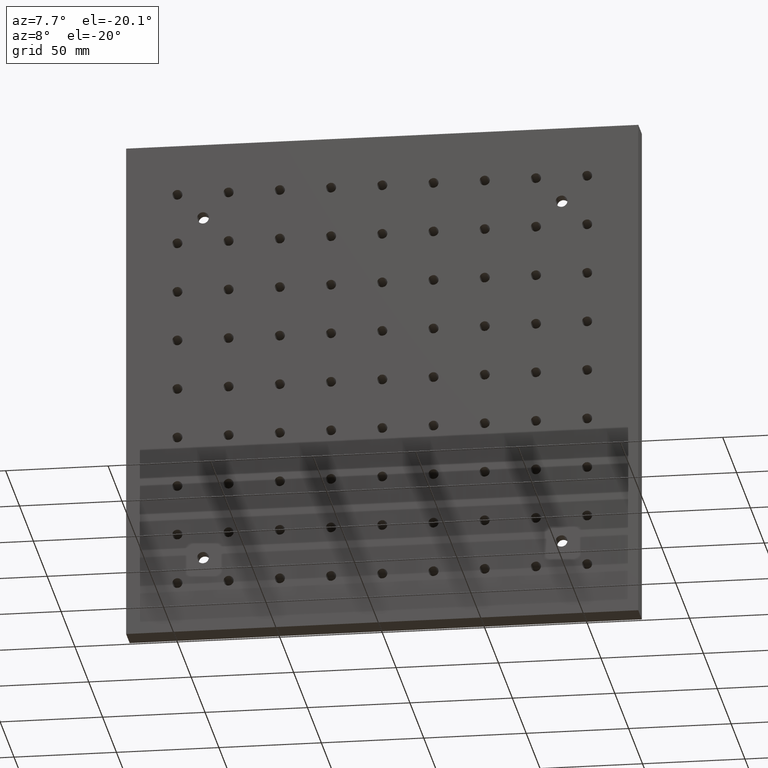
[diagram: clean part render]
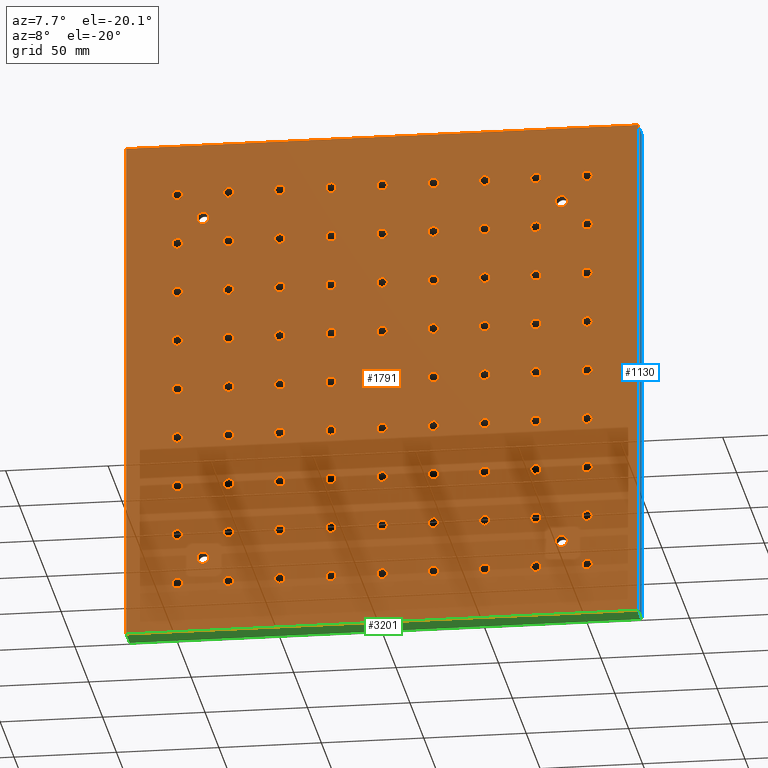
[diagram: same view with three faces highlighted in distinct colors, each labeled with its STEP entity id]
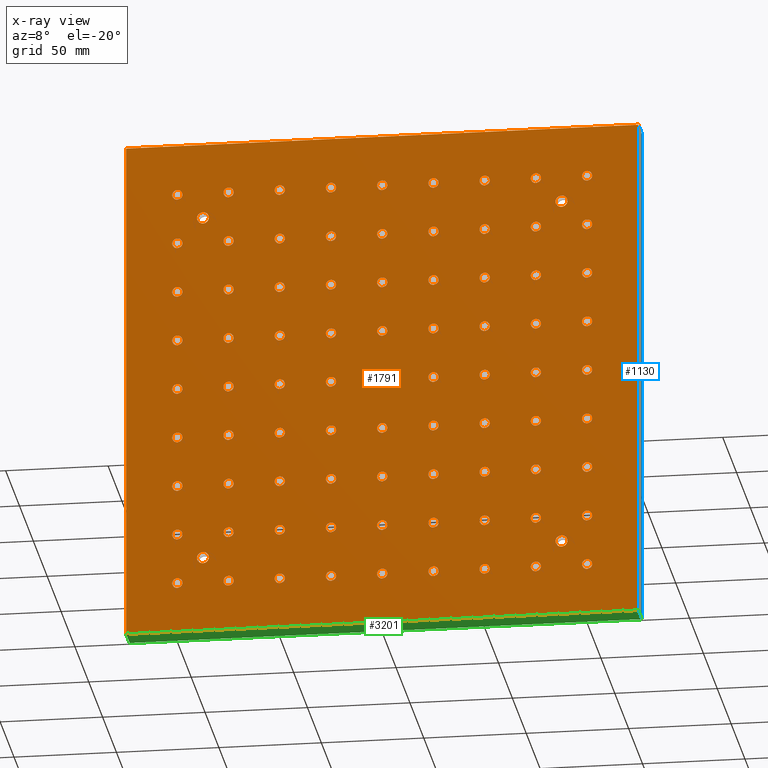
[diagram: x-ray of the same camera — body ghosted, the three highlighted faces saturated]
A machine part, auxiliary view with three faces highlighted in distinct colors.
The next image is the same camera in x-ray (body ghosted, the three faces saturated) — at least one of them is partly hidden behind the body in this view.
Their STEP definitions:

[orange] entity #1791 — the highlighted planar face has unit normal (0, 1, 0).
#2 = AXIS2_PLACEMENT_3D ( 'NONE', #621, #1647, #2115 ) ;
#5 = CARTESIAN_POINT ( 'NONE',  ( -99.99999999999977263, 0.000000000000000000, -77.50000000000001421 ) ) ;
#14 = DIRECTION ( 'NONE',  ( 0.000000000000000000, 0.000000000000000000, -1.000000000000000000 ) ) ;
#16 = ORIENTED_EDGE ( 'NONE', *, *, #338, .F. ) ;
#17 = DIRECTION ( 'NONE',  ( -0.000000000000000000, -1.000000000000000000, -0.000000000000000000 ) ) ;
#21 = CARTESIAN_POINT ( 'NONE',  ( 87.49999999999808153, 1.734723475976807094E-15, 90.40000000000000568 ) ) ;
#27 = DIRECTION ( 'NONE',  ( -0.000000000000000000, -1.000000000000000000, -0.000000000000000000 ) ) ;
#31 = ORIENTED_EDGE ( 'NONE', *, *, #2291, .F. ) ;
#32 = EDGE_CURVE ( 'NONE', #2841, #2841, #2485, .T. ) ;
#40 = DIRECTION ( 'NONE',  ( 0.000000000000000000, 0.000000000000000000, -1.000000000000000000 ) ) ;
#41 = CIRCLE ( 'NONE', #883, 2.499999999999995115 ) ;
#45 = CIRCLE ( 'NONE', #208, 2.499999999999995115 ) ;
#48 = AXIS2_PLACEMENT_3D ( 'NONE', #76, #1843, #1896 ) ;
#50 = CIRCLE ( 'NONE', #478, 2.500000000000002220 ) ;
#52 = CIRCLE ( 'NONE', #3233, 2.899999999999999911 ) ;
#57 = EDGE_CURVE ( 'NONE', #2828, #2828, #45, .T. ) ;
#62 = EDGE_CURVE ( 'NONE', #1293, #1293, #736, .T. ) ;
#71 = EDGE_LOOP ( 'NONE', ( #1599 ) ) ;
#72 = DIRECTION ( 'NONE',  ( 0.000000000000000000, 0.000000000000000000, -1.000000000000000000 ) ) ;
#75 = VERTEX_POINT ( 'NONE', #2936 ) ;
#76 = CARTESIAN_POINT ( 'NONE',  ( 75.00000000000022737, 0.000000000000000000, -75.00000000000001421 ) ) ;
#77 = DIRECTION ( 'NONE',  ( -0.000000000000000000, -1.000000000000000000, -0.000000000000000000 ) ) ;
#78 = EDGE_LOOP ( 'NONE', ( #833 ) ) ;
#86 = FACE_BOUND ( 'NONE', #365, .T. ) ;
#95 = VERTEX_POINT ( 'NONE', #2138 ) ;
#96 = AXIS2_PLACEMENT_3D ( 'NONE', #1982, #984, #1997 ) ;
#104 = DIRECTION ( 'NONE',  ( -0.000000000000000000, -1.000000000000000000, -0.000000000000000000 ) ) ;
#105 = EDGE_LOOP ( 'NONE', ( #692 ) ) ;
#106 = CIRCLE ( 'NONE', #1057, 2.500000000000002220 ) ;
#107 = FACE_BOUND ( 'NONE', #3255, .T. ) ;
#112 = EDGE_LOOP ( 'NONE', ( #1113 ) ) ;
#113 = VECTOR ( 'NONE', #2623, 1000.000000000000000 ) ;
#116 = CIRCLE ( 'NONE', #2078, 2.500000000000002220 ) ;
#117 = EDGE_LOOP ( 'NONE', ( #1245 ) ) ;
#119 = DIRECTION ( 'NONE',  ( 0.000000000000000000, 0.000000000000000000, -1.000000000000000000 ) ) ;
#124 = FACE_BOUND ( 'NONE', #897, .T. ) ;
#125 = EDGE_LOOP ( 'NONE', ( #2671 ) ) ;
#140 = FACE_BOUND ( 'NONE', #71, .T. ) ;
#143 = DIRECTION ( 'NONE',  ( 0.000000000000000000, 0.000000000000000000, -1.000000000000000000 ) ) ;
#149 = AXIS2_PLACEMENT_3D ( 'NONE', #3170, #3220, #1908 ) ;
#157 = FACE_BOUND ( 'NONE', #2509, .T. ) ;
#162 = EDGE_CURVE ( 'NONE', #801, #801, #3166, .T. ) ;
#163 = AXIS2_PLACEMENT_3D ( 'NONE', #781, #1292, #241 ) ;
#165 = ORIENTED_EDGE ( 'NONE', *, *, #2640, .F. ) ;
#168 = AXIS2_PLACEMENT_3D ( 'NONE', #287, #2037, #758 ) ;
#169 = CARTESIAN_POINT ( 'NONE',  ( -74.99999999999977263, 0.000000000000000000, -77.50000000000001421 ) ) ;
#178 = EDGE_LOOP ( 'NONE', ( #890 ) ) ;
#184 = CARTESIAN_POINT ( 'NONE',  ( 99.99999999999997158, 0.000000000000000000, -102.5000000000000142 ) ) ;
#201 = CARTESIAN_POINT ( 'NONE',  ( -49.99999999999950973, 0.000000000000000000, -52.50000000000000000 ) ) ;
#204 = CIRCLE ( 'NONE', #999, 2.500000000000002220 ) ;
#206 = EDGE_LOOP ( 'NONE', ( #1731 ) ) ;
#208 = AXIS2_PLACEMENT_3D ( 'NONE', #1407, #1426, #2974 ) ;
#212 = CIRCLE ( 'NONE', #3169, 2.499999999999995115 ) ;
#214 = AXIS2_PLACEMENT_3D ( 'NONE', #2481, #2942, #904 ) ;
#215 = DIRECTION ( 'NONE',  ( -0.000000000000000000, -1.000000000000000000, -0.000000000000000000 ) ) ;
#220 = CARTESIAN_POINT ( 'NONE',  ( 100.0000000000002274, 0.000000000000000000, -77.50000000000001421 ) ) ;
#221 = EDGE_LOOP ( 'NONE', ( #2103 ) ) ;
#222 = CIRCLE ( 'NONE', #638, 2.499999999999995115 ) ;
#223 = CARTESIAN_POINT ( 'NONE',  ( -74.99999999999820943, 0.000000000000000000, 72.50000000000001421 ) ) ;
#230 = DIRECTION ( 'NONE',  ( -0.000000000000000000, -1.000000000000000000, -0.000000000000000000 ) ) ;
#231 = ORIENTED_EDGE ( 'NONE', *, *, #3131, .F. ) ;
#233 = CARTESIAN_POINT ( 'NONE',  ( 100.0000000000002274, 0.000000000000000000, -75.00000000000001421 ) ) ;
#237 = EDGE_LOOP ( 'NONE', ( #1717 ) ) ;
#238 = VERTEX_POINT ( 'NONE', #466 ) ;
#241 = DIRECTION ( 'NONE',  ( 0.000000000000000000, 0.000000000000000000, -1.000000000000000000 ) ) ;
#246 = DIRECTION ( 'NONE',  ( -0.000000000000000000, -1.000000000000000000, -0.000000000000000000 ) ) ;
#249 = CARTESIAN_POINT ( 'NONE',  ( 49.99999999999998579, 0.000000000000000000, -102.5000000000000142 ) ) ;
#253 = DIRECTION ( 'NONE',  ( 0.000000000000000000, 0.000000000000000000, -1.000000000000000000 ) ) ;
#260 = EDGE_CURVE ( 'NONE', #859, #859, #1893, .T. ) ;
#262 = DIRECTION ( 'NONE',  ( 0.000000000000000000, 0.000000000000000000, -1.000000000000000000 ) ) ;
#267 = AXIS2_PLACEMENT_3D ( 'NONE', #1281, #1021, #253 ) ;
#268 = CARTESIAN_POINT ( 'NONE',  ( -100.0000000000000284, 0.000000000000000000, -100.0000000000000000 ) ) ;
#274 = EDGE_LOOP ( 'NONE', ( #1382 ) ) ;
#278 = ORIENTED_EDGE ( 'NONE', *, *, #2840, .F. ) ;
#282 = ORIENTED_EDGE ( 'NONE', *, *, #1274, .F. ) ;
#283 = EDGE_CURVE ( 'NONE', #2105, #2105, #1418, .T. ) ;
#287 = CARTESIAN_POINT ( 'NONE',  ( 87.49999999999808153, 1.734723475976807094E-15, -87.50000000000001421 ) ) ;
#295 = CARTESIAN_POINT ( 'NONE',  ( -74.99999999999899103, 0.000000000000000000, -2.499999999999995559 ) ) ;
#296 = EDGE_CURVE ( 'NONE', #3115, #3115, #943, .T. ) ;
#298 = CARTESIAN_POINT ( 'NONE',  ( -24.99999999999871747, 0.000000000000000000, 22.50000000000000000 ) ) ;
#299 = LINE ( 'NONE', #3056, #2701 ) ;
#300 = ORIENTED_EDGE ( 'NONE', *, *, #507, .F. ) ;
#303 = CARTESIAN_POINT ( 'NONE',  ( 99.99999999999997158, 0.000000000000000000, -100.0000000000000000 ) ) ;
#309 = CIRCLE ( 'NONE', #2014, 2.899999999999999911 ) ;
#310 = VERTEX_POINT ( 'NONE', #1087 ) ;
#316 = DIRECTION ( 'NONE',  ( 0.000000000000000000, 0.000000000000000000, -1.000000000000000000 ) ) ;
#317 = ORIENTED_EDGE ( 'NONE', *, *, #2617, .F. ) ;
#318 = AXIS2_PLACEMENT_3D ( 'NONE', #333, #3117, #1406 ) ;
#319 = DIRECTION ( 'NONE',  ( 0.000000000000000000, 0.000000000000000000, -1.000000000000000000 ) ) ;
#324 = CIRCLE ( 'NONE', #3244, 2.500000000000002220 ) ;
#333 = CARTESIAN_POINT ( 'NONE',  ( 75.00000000000051159, 0.000000000000000000, -50.00000000000000000 ) ) ;
#337 = FACE_BOUND ( 'NONE', #2216, .T. ) ;
#338 = EDGE_CURVE ( 'NONE', #3085, #3085, #1523, .T. ) ;
#351 = FACE_BOUND ( 'NONE', #1820, .T. ) ;
#360 = CARTESIAN_POINT ( 'NONE',  ( 25.00000000000127187, 0.000000000000000000, 22.50000000000000000 ) ) ;
#361 = CIRCLE ( 'NONE', #1312, 2.500000000000002220 ) ;
#362 = CARTESIAN_POINT ( 'NONE',  ( -125.0000000000000284, 0.000000000000000000, -125.0000000000000000 ) ) ;
#365 = EDGE_LOOP ( 'NONE', ( #1335 ) ) ;
#366 = AXIS2_PLACEMENT_3D ( 'NONE', #1309, #588, #1593 ) ;
#367 = FACE_BOUND ( 'NONE', #2627, .T. ) ;
#371 = DIRECTION ( 'NONE',  ( -0.000000000000000000, -1.000000000000000000, -0.000000000000000000 ) ) ;
#372 = EDGE_CURVE ( 'NONE', #1823, #1823, #2796, .T. ) ;
#373 = DIRECTION ( 'NONE',  ( 0.000000000000000000, 0.000000000000000000, -1.000000000000000000 ) ) ;
#380 = VERTEX_POINT ( 'NONE', #1619 ) ;
#381 = DIRECTION ( 'NONE',  ( -0.000000000000000000, -1.000000000000000000, -0.000000000000000000 ) ) ;
#386 = FACE_BOUND ( 'NONE', #112, .T. ) ;
#389 = CARTESIAN_POINT ( 'NONE',  ( -49.99999999999820233, 0.000000000000000000, 75.00000000000001421 ) ) ;
#394 = CARTESIAN_POINT ( 'NONE',  ( -24.99999999999793943, 0.000000000000000000, 97.50000000000000000 ) ) ;
#398 = DIRECTION ( 'NONE',  ( 0.000000000000000000, 0.000000000000000000, -1.000000000000000000 ) ) ;
#399 = ORIENTED_EDGE ( 'NONE', *, *, #1243, .F. ) ;
#411 = AXIS2_PLACEMENT_3D ( 'NONE', #895, #2666, #2408 ) ;
#412 = CARTESIAN_POINT ( 'NONE',  ( 25.00000000000152056, 0.000000000000000000, 47.50000000000002132 ) ) ;
#414 = CARTESIAN_POINT ( 'NONE',  ( -74.99999999999951683, 0.000000000000000000, -50.00000000000000000 ) ) ;
#418 = ORIENTED_EDGE ( 'NONE', *, *, #2844, .F. ) ;
#420 = FACE_BOUND ( 'NONE', #1341, .T. ) ;
#430 = CIRCLE ( 'NONE', #318, 2.499999999999995115 ) ;
#431 = CARTESIAN_POINT ( 'NONE',  ( -74.99999999999873523, 0.000000000000000000, 22.50000000000000000 ) ) ;
#434 = AXIS2_PLACEMENT_3D ( 'NONE', #3268, #744, #1753 ) ;
#441 = DIRECTION ( 'NONE',  ( 0.000000000000000000, 0.000000000000000000, -1.000000000000000000 ) ) ;
#442 = DIRECTION ( 'NONE',  ( 0.000000000000000000, 1.000000000000000000, 0.000000000000000000 ) ) ;
#446 = CARTESIAN_POINT ( 'NONE',  ( 2.053912595556539600E-12, 0.000000000000000000, 100.0000000000000000 ) ) ;
#451 = ORIENTED_EDGE ( 'NONE', *, *, #2165, .F. ) ;
#452 = VERTEX_POINT ( 'NONE', #2032 ) ;
#455 = DIRECTION ( 'NONE',  ( 0.000000000000000000, 0.000000000000000000, 1.000000000000000000 ) ) ;
#458 = CARTESIAN_POINT ( 'NONE',  ( -99.99999999999846523, 0.000000000000000000, 50.00000000000001421 ) ) ;
#460 = DIRECTION ( 'NONE',  ( 0.000000000000000000, 0.000000000000000000, -1.000000000000000000 ) ) ;
#464 = CARTESIAN_POINT ( 'NONE',  ( 50.00000000000181899, 0.000000000000000000, 72.50000000000001421 ) ) ;
#466 = CARTESIAN_POINT ( 'NONE',  ( -74.99999999999924682, 0.000000000000000000, -27.49999999999998934 ) ) ;
#474 = FACE_BOUND ( 'NONE', #1780, .T. ) ;
#475 = ORIENTED_EDGE ( 'NONE', *, *, #2008, .F. ) ;
#477 = CIRCLE ( 'NONE', #1688, 2.500000000000002220 ) ;
#478 = AXIS2_PLACEMENT_3D ( 'NONE', #2762, #760, #2003 ) ;
#480 = EDGE_LOOP ( 'NONE', ( #2281 ) ) ;
#482 = EDGE_CURVE ( 'NONE', #2405, #2405, #477, .T. ) ;
#484 = CARTESIAN_POINT ( 'NONE',  ( -49.99999999999794653, 0.000000000000000000, 97.50000000000000000 ) ) ;
#486 = AXIS2_PLACEMENT_3D ( 'NONE', #1986, #230, #2994 ) ;
#490 = DIRECTION ( 'NONE',  ( 0.000000000000000000, 0.000000000000000000, -1.000000000000000000 ) ) ;
#495 = ORIENTED_EDGE ( 'NONE', *, *, #839, .F. ) ;
#497 = DIRECTION ( 'NONE',  ( -0.000000000000000000, -1.000000000000000000, -0.000000000000000000 ) ) ;
#501 = EDGE_LOOP ( 'NONE', ( #16 ) ) ;
#506 = CARTESIAN_POINT ( 'NONE',  ( -49.99999999999976552, 0.000000000000000000, -75.00000000000001421 ) ) ;
#507 = EDGE_CURVE ( 'NONE', #2459, #2459, #2489, .T. ) ;
#522 = EDGE_LOOP ( 'NONE', ( #165 ) ) ;
#525 = EDGE_CURVE ( 'NONE', #1128, #1128, #212, .T. ) ;
#528 = CARTESIAN_POINT ( 'NONE',  ( 100.0000000000012790, 0.000000000000000000, 24.99999999999999289 ) ) ;
#534 = AXIS2_PLACEMENT_3D ( 'NONE', #1296, #544, #1781 ) ;
#537 = DIRECTION ( 'NONE',  ( -0.000000000000000000, -1.000000000000000000, -0.000000000000000000 ) ) ;
#539 = CARTESIAN_POINT ( 'NONE',  ( 25.00000000000102318, 0.000000000000000000, -2.499999999999995559 ) ) ;
#540 = DIRECTION ( 'NONE',  ( -0.000000000000000000, -1.000000000000000000, -0.000000000000000000 ) ) ;
#542 = ORIENTED_EDGE ( 'NONE', *, *, #2783, .F. ) ;
#544 = DIRECTION ( 'NONE',  ( -0.000000000000000000, -1.000000000000000000, -0.000000000000000000 ) ) ;
#546 = ORIENTED_EDGE ( 'NONE', *, *, #1238, .F. ) ;
#548 = EDGE_CURVE ( 'NONE', #944, #944, #1310, .T. ) ;
#551 = DIRECTION ( 'NONE',  ( 0.000000000000000000, 0.000000000000000000, -1.000000000000000000 ) ) ;
#556 = EDGE_LOOP ( 'NONE', ( #3089, #1209, #3035, #475 ) ) ;
#559 = EDGE_LOOP ( 'NONE', ( #864 ) ) ;
#566 = CARTESIAN_POINT ( 'NONE',  ( -99.99999999999820943, 0.000000000000000000, 72.50000000000001421 ) ) ;
#575 = DIRECTION ( 'NONE',  ( 0.000000000000000000, 0.000000000000000000, -1.000000000000000000 ) ) ;
#580 = VERTEX_POINT ( 'NONE', #779 ) ;
#586 = VERTEX_POINT ( 'NONE', #1772 ) ;
#587 = AXIS2_PLACEMENT_3D ( 'NONE', #2600, #2614, #2157 ) ;
#588 = DIRECTION ( 'NONE',  ( -0.000000000000000000, -1.000000000000000000, -0.000000000000000000 ) ) ;
#598 = ORIENTED_EDGE ( 'NONE', *, *, #32, .F. ) ;
#600 = DIRECTION ( 'NONE',  ( 0.000000000000000000, 0.000000000000000000, -1.000000000000000000 ) ) ;
#605 = FACE_BOUND ( 'NONE', #1714, .T. ) ;
#612 = CARTESIAN_POINT ( 'NONE',  ( 75.00000000000129319, 0.000000000000000000, 22.50000000000000000 ) ) ;
#616 = ORIENTED_EDGE ( 'NONE', *, *, #751, .F. ) ;
#619 = FACE_BOUND ( 'NONE', #2624, .T. ) ;
#620 = EDGE_LOOP ( 'NONE', ( #3190 ) ) ;
#621 = CARTESIAN_POINT ( 'NONE',  ( -75.00000000000004263, 0.000000000000000000, -100.0000000000000000 ) ) ;
#624 = EDGE_LOOP ( 'NONE', ( #3173 ) ) ;
#633 = DIRECTION ( 'NONE',  ( 0.000000000000000000, 0.000000000000000000, -1.000000000000000000 ) ) ;
#634 = CARTESIAN_POINT ( 'NONE',  ( 25.00000000000179767, 0.000000000000000000, 75.00000000000001421 ) ) ;
#637 = FACE_BOUND ( 'NONE', #2124, .T. ) ;
#638 = AXIS2_PLACEMENT_3D ( 'NONE', #1544, #540, #316 ) ;
#643 = ORIENTED_EDGE ( 'NONE', *, *, #2204, .F. ) ;
#646 = EDGE_CURVE ( 'NONE', #2878, #2878, #2799, .T. ) ;
#648 = AXIS2_PLACEMENT_3D ( 'NONE', #1454, #3230, #1719 ) ;
#655 = ORIENTED_EDGE ( 'NONE', *, *, #2452, .F. ) ;
#657 = FACE_BOUND ( 'NONE', #2317, .T. ) ;
#658 = ORIENTED_EDGE ( 'NONE', *, *, #2342, .F. ) ;
#663 = EDGE_CURVE ( 'NONE', #380, #380, #1364, .T. ) ;
#664 = CARTESIAN_POINT ( 'NONE',  ( -49.99999999999820233, 0.000000000000000000, 72.50000000000001421 ) ) ;
#668 = CARTESIAN_POINT ( 'NONE',  ( 25.00000000000102318, 0.000000000000000000, 0.000000000000000000 ) ) ;
#669 = DIRECTION ( 'NONE',  ( -0.000000000000000000, -1.000000000000000000, -0.000000000000000000 ) ) ;
#672 = FACE_BOUND ( 'NONE', #1874, .T. ) ;
#678 = AXIS2_PLACEMENT_3D ( 'NONE', #1339, #2089, #1322 ) ;
#680 = EDGE_CURVE ( 'NONE', #1374, #1374, #2326, .T. ) ;
#681 = CARTESIAN_POINT ( 'NONE',  ( 50.00000000000104450, 0.000000000000000000, -2.499999999999995559 ) ) ;
#689 = CIRCLE ( 'NONE', #1104, 2.499999999999995115 ) ;
#691 = FACE_BOUND ( 'NONE', #125, .T. ) ;
#692 = ORIENTED_EDGE ( 'NONE', *, *, #1822, .F. ) ;
#695 = AXIS2_PLACEMENT_3D ( 'NONE', #2000, #3010, #3208 ) ;
#699 = AXIS2_PLACEMENT_3D ( 'NONE', #3151, #1129, #119 ) ;
#700 = CARTESIAN_POINT ( 'NONE',  ( 4.996003610813204432E-13, 0.000000000000000000, -52.50000000000000000 ) ) ;
#701 = AXIS2_PLACEMENT_3D ( 'NONE', #832, #2593, #575 ) ;
#702 = EDGE_LOOP ( 'NONE', ( #1606 ) ) ;
#703 = AXIS2_PLACEMENT_3D ( 'NONE', #1199, #2183, #2449 ) ;
#704 = VERTEX_POINT ( 'NONE', #1030 ) ;
#710 = FACE_BOUND ( 'NONE', #480, .T. ) ;
#711 = EDGE_LOOP ( 'NONE', ( #1330 ) ) ;
#715 = DIRECTION ( 'NONE',  ( -0.000000000000000000, -1.000000000000000000, -0.000000000000000000 ) ) ;
#716 = CARTESIAN_POINT ( 'NONE',  ( 25.00000000000021672, 0.000000000000000000, -77.50000000000001421 ) ) ;
#723 = CARTESIAN_POINT ( 'NONE',  ( 0.000000000000000000, 0.000000000000000000, 0.000000000000000000 ) ) ;
#724 = EDGE_LOOP ( 'NONE', ( #495 ) ) ;
#728 = EDGE_LOOP ( 'NONE', ( #1769 ) ) ;
#731 = VERTEX_POINT ( 'NONE', #484 ) ;
#734 = DIRECTION ( 'NONE',  ( 0.000000000000000000, 0.000000000000000000, -1.000000000000000000 ) ) ;
#736 = CIRCLE ( 'NONE', #411, 2.500000000000002220 ) ;
#740 = FACE_BOUND ( 'NONE', #711, .T. ) ;
#744 = DIRECTION ( 'NONE',  ( -0.000000000000000000, -1.000000000000000000, -0.000000000000000000 ) ) ;
#745 = ORIENTED_EDGE ( 'NONE', *, *, #1850, .F. ) ;
#751 = EDGE_CURVE ( 'NONE', #2948, #2948, #3285, .T. ) ;
#752 = VERTEX_POINT ( 'NONE', #767 ) ;
#758 = DIRECTION ( 'NONE',  ( 0.000000000000000000, 0.000000000000000000, -1.000000000000000000 ) ) ;
#760 = DIRECTION ( 'NONE',  ( -0.000000000000000000, -1.000000000000000000, -0.000000000000000000 ) ) ;
#764 = VERTEX_POINT ( 'NONE', #220 ) ;
#766 = EDGE_CURVE ( 'NONE', #3150, #3150, #946, .T. ) ;
#767 = CARTESIAN_POINT ( 'NONE',  ( 25.00000000000179767, 0.000000000000000000, 72.50000000000001421 ) ) ;
#775 = EDGE_LOOP ( 'NONE', ( #2322 ) ) ;
#779 = CARTESIAN_POINT ( 'NONE',  ( 50.00000000000154188, 0.000000000000000000, 47.50000000000002132 ) ) ;
#781 = CARTESIAN_POINT ( 'NONE',  ( 50.00000000000052580, 0.000000000000000000, -50.00000000000000000 ) ) ;
#782 = CARTESIAN_POINT ( 'NONE',  ( 50.00000000000181899, 0.000000000000000000, 75.00000000000001421 ) ) ;
#789 = EDGE_LOOP ( 'NONE', ( #964 ) ) ;
#795 = CIRCLE ( 'NONE', #1636, 2.499999999999995115 ) ;
#796 = VERTEX_POINT ( 'NONE', #2611 ) ;
#798 = AXIS2_PLACEMENT_3D ( 'NONE', #2268, #537, #2736 ) ;
#801 = VERTEX_POINT ( 'NONE', #539 ) ;
#809 = DIRECTION ( 'NONE',  ( -0.000000000000000000, -1.000000000000000000, -0.000000000000000000 ) ) ;
#822 = CARTESIAN_POINT ( 'NONE',  ( -99.99999999999846523, 0.000000000000000000, 47.50000000000002132 ) ) ;
#825 = ORIENTED_EDGE ( 'NONE', *, *, #766, .F. ) ;
#832 = CARTESIAN_POINT ( 'NONE',  ( -49.99999999999924682, 0.000000000000000000, -24.99999999999999289 ) ) ;
#833 = ORIENTED_EDGE ( 'NONE', *, *, #1941, .T. ) ;
#839 = EDGE_CURVE ( 'NONE', #1390, #1390, #2433, .T. ) ;
#840 = CARTESIAN_POINT ( 'NONE',  ( -100.0000000000000284, 0.000000000000000000, -102.5000000000000142 ) ) ;
#841 = CIRCLE ( 'NONE', #1486, 2.899999999999999911 ) ;
#843 = EDGE_CURVE ( 'NONE', #3167, #3167, #2801, .T. ) ;
#845 = CIRCLE ( 'NONE', #1805, 2.499999999999995115 ) ;
#848 = CIRCLE ( 'NONE', #2704, 2.500000000000002220 ) ;
#849 = FACE_BOUND ( 'NONE', #1079, .T. ) ;
#850 = ORIENTED_EDGE ( 'NONE', *, *, #1565, .F. ) ;
#852 = CIRCLE ( 'NONE', #3081, 2.500000000000002220 ) ;
#859 = VERTEX_POINT ( 'NONE', #1543 ) ;
#860 = DIRECTION ( 'NONE',  ( -1.000000000000000000, -0.000000000000000000, 0.000000000000000000 ) ) ;
#862 = DIRECTION ( 'NONE',  ( -0.000000000000000000, -1.000000000000000000, -0.000000000000000000 ) ) ;
#864 = ORIENTED_EDGE ( 'NONE', *, *, #482, .F. ) ;
#865 = FACE_BOUND ( 'NONE', #3078, .T. ) ;
#869 = EDGE_LOOP ( 'NONE', ( #1182 ) ) ;
#878 = FACE_BOUND ( 'NONE', #2893, .T. ) ;
#883 = AXIS2_PLACEMENT_3D ( 'NONE', #2017, #3029, #1778 ) ;
#888 = VERTEX_POINT ( 'NONE', #1442 ) ;
#889 = AXIS2_PLACEMENT_3D ( 'NONE', #2552, #2333, #2810 ) ;
#890 = ORIENTED_EDGE ( 'NONE', *, *, #1691, .F. ) ;
#893 = AXIS2_PLACEMENT_3D ( 'NONE', #2690, #2996, #460 ) ;
#895 = CARTESIAN_POINT ( 'NONE',  ( -99.99999999999795364, 0.000000000000000000, 100.0000000000000000 ) ) ;
#897 = EDGE_LOOP ( 'NONE', ( #3004 ) ) ;
#900 = FACE_BOUND ( 'NONE', #2271, .T. ) ;
#902 = ORIENTED_EDGE ( 'NONE', *, *, #1452, .F. ) ;
#903 = EDGE_CURVE ( 'NONE', #2934, #2934, #1369, .T. ) ;
#904 = DIRECTION ( 'NONE',  ( 0.000000000000000000, 0.000000000000000000, -1.000000000000000000 ) ) ;
#905 = CIRCLE ( 'NONE', #2550, 2.499999999999995115 ) ;
#908 = CIRCLE ( 'NONE', #701, 2.499999999999995115 ) ;
#910 = CARTESIAN_POINT ( 'NONE',  ( -74.99999999999951683, 0.000000000000000000, -52.50000000000000000 ) ) ;
#916 = DIRECTION ( 'NONE',  ( 0.000000000000000000, 0.000000000000000000, -1.000000000000000000 ) ) ;
#919 = FACE_BOUND ( 'NONE', #789, .T. ) ;
#922 = EDGE_CURVE ( 'NONE', #2679, #2679, #1219, .T. ) ;
#924 = ORIENTED_EDGE ( 'NONE', *, *, #1017, .F. ) ;
#931 = EDGE_LOOP ( 'NONE', ( #1602 ) ) ;
#932 = DIRECTION ( 'NONE',  ( 0.000000000000000000, 0.000000000000000000, -1.000000000000000000 ) ) ;
#935 = FACE_BOUND ( 'NONE', #702, .T. ) ;
#936 = ORIENTED_EDGE ( 'NONE', *, *, #2907, .F. ) ;
#941 = VERTEX_POINT ( 'NONE', #1993 ) ;
#943 = CIRCLE ( 'NONE', #2279, 2.500000000000002220 ) ;
#944 = VERTEX_POINT ( 'NONE', #394 ) ;
#945 = DIRECTION ( 'NONE',  ( -0.000000000000000000, -1.000000000000000000, -0.000000000000000000 ) ) ;
#946 = CIRCLE ( 'NONE', #1793, 2.499999999999995115 ) ;
#950 = LINE ( 'NONE', #3223, #2557 ) ;
#961 = AXIS2_PLACEMENT_3D ( 'NONE', #1568, #3072, #1824 ) ;
#964 = ORIENTED_EDGE ( 'NONE', *, *, #3172, .F. ) ;
#966 = CARTESIAN_POINT ( 'NONE',  ( 24.99999999999997158, 0.000000000000000000, -102.5000000000000142 ) ) ;
#970 = CARTESIAN_POINT ( 'NONE',  ( 24.99999999999997158, 0.000000000000000000, -100.0000000000000000 ) ) ;
#973 = CARTESIAN_POINT ( 'NONE',  ( 100.0000000000005258, 0.000000000000000000, -50.00000000000000000 ) ) ;
#977 = DIRECTION ( 'NONE',  ( -0.000000000000000000, -1.000000000000000000, -0.000000000000000000 ) ) ;
#984 = DIRECTION ( 'NONE',  ( -0.000000000000000000, -1.000000000000000000, -0.000000000000000000 ) ) ;
#998 = VERTEX_POINT ( 'NONE', #966 ) ;
#999 = AXIS2_PLACEMENT_3D ( 'NONE', #782, #2285, #1218 ) ;
#1005 = FACE_BOUND ( 'NONE', #206, .T. ) ;
#1012 = DIRECTION ( 'NONE',  ( 0.000000000000000000, 0.000000000000000000, -1.000000000000000000 ) ) ;
#1016 = ORIENTED_EDGE ( 'NONE', *, *, #1937, .F. ) ;
#1017 = EDGE_CURVE ( 'NONE', #1690, #1690, #361, .T. ) ;
#1021 = DIRECTION ( 'NONE',  ( -0.000000000000000000, -1.000000000000000000, -0.000000000000000000 ) ) ;
#1027 = DIRECTION ( 'NONE',  ( 0.000000000000000000, 0.000000000000000000, -1.000000000000000000 ) ) ;
#1030 = CARTESIAN_POINT ( 'NONE',  ( 1.013078509970455343E-12, 0.000000000000000000, -2.499999999999995559 ) ) ;
#1041 = ORIENTED_EDGE ( 'NONE', *, *, #2044, .F. ) ;
#1044 = DIRECTION ( 'NONE',  ( 0.000000000000000000, 0.000000000000000000, -1.000000000000000000 ) ) ;
#1055 = CARTESIAN_POINT ( 'NONE',  ( 50.00000000000129319, 0.000000000000000000, 24.99999999999999289 ) ) ;
#1057 = AXIS2_PLACEMENT_3D ( 'NONE', #3119, #2588, #72 ) ;
#1058 = VERTEX_POINT ( 'NONE', #822 ) ;
#1063 = CIRCLE ( 'NONE', #2708, 2.499999999999995115 ) ;
#1067 = EDGE_CURVE ( 'NONE', #1979, #1979, #689, .T. ) ;
#1072 = CARTESIAN_POINT ( 'NONE',  ( -99.99999999999950262, 0.000000000000000000, -50.00000000000000000 ) ) ;
#1079 = EDGE_LOOP ( 'NONE', ( #1945 ) ) ;
#1080 = DIRECTION ( 'NONE',  ( 0.000000000000000000, 0.000000000000000000, -1.000000000000000000 ) ) ;
#1083 = EDGE_CURVE ( 'NONE', #2492, #2492, #309, .T. ) ;
#1085 = EDGE_LOOP ( 'NONE', ( #1660 ) ) ;
#1087 = CARTESIAN_POINT ( 'NONE',  ( -87.49999999999808153, 1.734723475976807094E-15, -90.40000000000000568 ) ) ;
#1088 = EDGE_CURVE ( 'NONE', #1958, #1958, #50, .T. ) ;
#1096 = FACE_BOUND ( 'NONE', #501, .T. ) ;
#1102 = EDGE_LOOP ( 'NONE', ( #616 ) ) ;
#1104 = AXIS2_PLACEMENT_3D ( 'NONE', #2820, #27, #40 ) ;
#1105 = CARTESIAN_POINT ( 'NONE',  ( 75.00000000000181899, 0.000000000000000000, 72.50000000000001421 ) ) ;
#1111 = CIRCLE ( 'NONE', #267, 2.500000000000002220 ) ;
#1113 = ORIENTED_EDGE ( 'NONE', *, *, #260, .F. ) ;
#1116 = EDGE_LOOP ( 'NONE', ( #745 ) ) ;
#1118 = FACE_BOUND ( 'NONE', #2242, .T. ) ;
#1125 = VERTEX_POINT ( 'NONE', #910 ) ;
#1128 = VERTEX_POINT ( 'NONE', #1885 ) ;
#1129 = DIRECTION ( 'NONE',  ( -0.000000000000000000, -1.000000000000000000, -0.000000000000000000 ) ) ;
#1131 = EDGE_LOOP ( 'NONE', ( #1552 ) ) ;
#1133 = ORIENTED_EDGE ( 'NONE', *, *, #1163, .F. ) ;
#1135 = FACE_BOUND ( 'NONE', #2336, .T. ) ;
#1141 = CARTESIAN_POINT ( 'NONE',  ( 100.0000000000015348, 0.000000000000000000, 47.50000000000002132 ) ) ;
#1143 = CARTESIAN_POINT ( 'NONE',  ( -49.99999999999872813, 0.000000000000000000, 22.50000000000000000 ) ) ;
#1147 = EDGE_CURVE ( 'NONE', #1709, #1709, #2376, .T. ) ;
#1152 = DIRECTION ( 'NONE',  ( -0.000000000000000000, -1.000000000000000000, -0.000000000000000000 ) ) ;
#1155 = CARTESIAN_POINT ( 'NONE',  ( -24.99999999999845457, 0.000000000000000000, 47.50000000000002132 ) ) ;
#1156 = AXIS2_PLACEMENT_3D ( 'NONE', #1273, #17, #1027 ) ;
#1157 = ORIENTED_EDGE ( 'NONE', *, *, #1147, .F. ) ;
#1162 = DIRECTION ( 'NONE',  ( -0.000000000000000000, -1.000000000000000000, -0.000000000000000000 ) ) ;
#1163 = EDGE_CURVE ( 'NONE', #2524, #2524, #1846, .T. ) ;
#1167 = FACE_BOUND ( 'NONE', #522, .T. ) ;
#1173 = ORIENTED_EDGE ( 'NONE', *, *, #548, .F. ) ;
#1179 = DIRECTION ( 'NONE',  ( -0.000000000000000000, -1.000000000000000000, -0.000000000000000000 ) ) ;
#1182 = ORIENTED_EDGE ( 'NONE', *, *, #296, .F. ) ;
#1186 = DIRECTION ( 'NONE',  ( 0.000000000000000000, 0.000000000000000000, -1.000000000000000000 ) ) ;
#1189 = DIRECTION ( 'NONE',  ( -0.000000000000000000, -1.000000000000000000, -0.000000000000000000 ) ) ;
#1194 = CARTESIAN_POINT ( 'NONE',  ( 75.00000000000206057, 0.000000000000000000, 97.50000000000000000 ) ) ;
#1199 = CARTESIAN_POINT ( 'NONE',  ( -49.99999999999899103, 0.000000000000000000, 0.000000000000000000 ) ) ;
#1209 = ORIENTED_EDGE ( 'NONE', *, *, #3000, .F. ) ;
#1211 = VERTEX_POINT ( 'NONE', #3024 ) ;
#1218 = DIRECTION ( 'NONE',  ( 0.000000000000000000, 0.000000000000000000, -1.000000000000000000 ) ) ;
#1219 = CIRCLE ( 'NONE', #893, 2.499999999999995115 ) ;
#1220 = FACE_BOUND ( 'NONE', #2830, .T. ) ;
#1225 = CIRCLE ( 'NONE', #3182, 2.499999999999995115 ) ;
#1229 = AXIS2_PLACEMENT_3D ( 'NONE', #2864, #2879, #600 ) ;
#1233 = AXIS2_PLACEMENT_3D ( 'NONE', #233, #215, #1257 ) ;
#1234 = VERTEX_POINT ( 'NONE', #1742 ) ;
#1236 = DIRECTION ( 'NONE',  ( 0.000000000000000000, 0.000000000000000000, -1.000000000000000000 ) ) ;
#1237 = DIRECTION ( 'NONE',  ( 0.000000000000000000, 0.000000000000000000, -1.000000000000000000 ) ) ;
#1238 = EDGE_CURVE ( 'NONE', #2473, #2473, #3122, .T. ) ;
#1240 = EDGE_CURVE ( 'NONE', #3005, #3005, #1747, .T. ) ;
#1241 = FACE_BOUND ( 'NONE', #2876, .T. ) ;
#1243 = EDGE_CURVE ( 'NONE', #2717, #2717, #106, .T. ) ;
#1245 = ORIENTED_EDGE ( 'NONE', *, *, #2715, .F. ) ;
#1249 = CARTESIAN_POINT ( 'NONE',  ( 75.00000000000153477, 0.000000000000000000, 47.50000000000002132 ) ) ;
#1250 = DIRECTION ( 'NONE',  ( 0.000000000000000000, 0.000000000000000000, -1.000000000000000000 ) ) ;
#1257 = DIRECTION ( 'NONE',  ( 0.000000000000000000, 0.000000000000000000, -1.000000000000000000 ) ) ;
#1260 = CARTESIAN_POINT ( 'NONE',  ( 2.053912595556539600E-12, 0.000000000000000000, 97.50000000000000000 ) ) ;
#1262 = VERTEX_POINT ( 'NONE', #5 ) ;
#1272 = ORIENTED_EDGE ( 'NONE', *, *, #1514, .F. ) ;
#1273 = CARTESIAN_POINT ( 'NONE',  ( 75.00000000000206057, 0.000000000000000000, 100.0000000000000000 ) ) ;
#1274 = EDGE_CURVE ( 'NONE', #452, #452, #2379, .T. ) ;
#1280 = AXIS2_PLACEMENT_3D ( 'NONE', #3283, #977, #2483 ) ;
#1281 = CARTESIAN_POINT ( 'NONE',  ( 1.790234627208064921E-12, 0.000000000000000000, 75.00000000000001421 ) ) ;
#1292 = DIRECTION ( 'NONE',  ( -0.000000000000000000, -1.000000000000000000, -0.000000000000000000 ) ) ;
#1293 = VERTEX_POINT ( 'NONE', #2327 ) ;
#1296 = CARTESIAN_POINT ( 'NONE',  ( 75.00000000000153477, 0.000000000000000000, 50.00000000000001421 ) ) ;
#1300 = CARTESIAN_POINT ( 'NONE',  ( -125.0000000000000000, 0.000000000000000000, 125.0000000000000000 ) ) ;
#1303 = VERTEX_POINT ( 'NONE', #2354 ) ;
#1306 = DIRECTION ( 'NONE',  ( -1.110223024625156540E-16, -0.000000000000000000, -1.000000000000000000 ) ) ;
#1309 = CARTESIAN_POINT ( 'NONE',  ( 100.0000000000020606, 0.000000000000000000, 100.0000000000000000 ) ) ;
#1310 = CIRCLE ( 'NONE', #889, 2.500000000000002220 ) ;
#1312 = AXIS2_PLACEMENT_3D ( 'NONE', #1414, #1434, #1186 ) ;
#1322 = DIRECTION ( 'NONE',  ( 0.000000000000000000, 0.000000000000000000, -1.000000000000000000 ) ) ;
#1328 = EDGE_CURVE ( 'NONE', #752, #752, #2172, .T. ) ;
#1329 = CIRCLE ( 'NONE', #434, 2.499999999999995115 ) ;
#1330 = ORIENTED_EDGE ( 'NONE', *, *, #3236, .F. ) ;
#1334 = CARTESIAN_POINT ( 'NONE',  ( -74.99999999999977263, 0.000000000000000000, -75.00000000000001421 ) ) ;
#1335 = ORIENTED_EDGE ( 'NONE', *, *, #1603, .F. ) ;
#1337 = VERTEX_POINT ( 'NONE', #2366 ) ;
#1339 = CARTESIAN_POINT ( 'NONE',  ( 75.00000000000076739, 0.000000000000000000, -24.99999999999999289 ) ) ;
#1341 = EDGE_LOOP ( 'NONE', ( #399 ) ) ;
#1342 = DIRECTION ( 'NONE',  ( -0.000000000000000000, -1.000000000000000000, -0.000000000000000000 ) ) ;
#1343 = EDGE_CURVE ( 'NONE', #1234, #1234, #2908, .T. ) ;
#1344 = ORIENTED_EDGE ( 'NONE', *, *, #663, .F. ) ;
#1345 = FACE_BOUND ( 'NONE', #1680, .T. ) ;
#1353 = ORIENTED_EDGE ( 'NONE', *, *, #2877, .F. ) ;
#1359 = FACE_BOUND ( 'NONE', #931, .T. ) ;
#1363 = AXIS2_PLACEMENT_3D ( 'NONE', #3007, #2754, #490 ) ;
#1364 = CIRCLE ( 'NONE', #1526, 2.499999999999995115 ) ;
#1369 = CIRCLE ( 'NONE', #214, 2.500000000000002220 ) ;
#1373 = AXIS2_PLACEMENT_3D ( 'NONE', #3088, #104, #1641 ) ;
#1374 = VERTEX_POINT ( 'NONE', #1194 ) ;
#1380 = AXIS2_PLACEMENT_3D ( 'NONE', #1437, #1704, #3179 ) ;
#1381 = FACE_BOUND ( 'NONE', #1403, .T. ) ;
#1382 = ORIENTED_EDGE ( 'NONE', *, *, #1441, .T. ) ;
#1390 = VERTEX_POINT ( 'NONE', #2156 ) ;
#1391 = DIRECTION ( 'NONE',  ( 0.000000000000000000, 0.000000000000000000, -1.000000000000000000 ) ) ;
#1396 = FACE_BOUND ( 'NONE', #78, .T. ) ;
#1398 = CARTESIAN_POINT ( 'NONE',  ( -49.99999999999872813, 0.000000000000000000, 24.99999999999999289 ) ) ;
#1403 = EDGE_LOOP ( 'NONE', ( #655 ) ) ;
#1406 = DIRECTION ( 'NONE',  ( 0.000000000000000000, 0.000000000000000000, -1.000000000000000000 ) ) ;
#1407 = CARTESIAN_POINT ( 'NONE',  ( -24.99999999999871747, 0.000000000000000000, 24.99999999999999289 ) ) ;
#1410 = ORIENTED_EDGE ( 'NONE', *, *, #2997, .F. ) ;
#1411 = DIRECTION ( 'NONE',  ( -0.000000000000000000, -1.000000000000000000, -0.000000000000000000 ) ) ;
#1412 = FACE_BOUND ( 'NONE', #105, .T. ) ;
#1414 = CARTESIAN_POINT ( 'NONE',  ( -50.00000000000002842, 0.000000000000000000, -100.0000000000000000 ) ) ;
#1416 = DIRECTION ( 'NONE',  ( 0.000000000000000000, 0.000000000000000000, -1.000000000000000000 ) ) ;
#1418 = CIRCLE ( 'NONE', #3282, 2.499999999999995559 ) ;
#1420 = VERTEX_POINT ( 'NONE', #1155 ) ;
#1426 = DIRECTION ( 'NONE',  ( -0.000000000000000000, -1.000000000000000000, -0.000000000000000000 ) ) ;
#1427 = CARTESIAN_POINT ( 'NONE',  ( -87.49999999999808153, 1.734723475976807094E-15, 87.50000000000001421 ) ) ;
#1429 = AXIS2_PLACEMENT_3D ( 'NONE', #973, #2958, #2688 ) ;
#1431 = DIRECTION ( 'NONE',  ( -0.000000000000000000, -1.000000000000000000, -0.000000000000000000 ) ) ;
#1434 = DIRECTION ( 'NONE',  ( -0.000000000000000000, -1.000000000000000000, -0.000000000000000000 ) ) ;
#1435 = EDGE_CURVE ( 'NONE', #998, #998, #1579, .T. ) ;
#1436 = CIRCLE ( 'NONE', #2916, 2.499999999999995115 ) ;
#1437 = CARTESIAN_POINT ( 'NONE',  ( 75.00000000000181899, 0.000000000000000000, 75.00000000000001421 ) ) ;
#1441 = EDGE_CURVE ( 'NONE', #1211, #1211, #52, .T. ) ;
#1442 = CARTESIAN_POINT ( 'NONE',  ( -49.99999999999924682, 0.000000000000000000, -27.49999999999998934 ) ) ;
#1450 = FACE_BOUND ( 'NONE', #2074, .T. ) ;
#1452 = EDGE_CURVE ( 'NONE', #238, #238, #2437, .T. ) ;
#1454 = CARTESIAN_POINT ( 'NONE',  ( 100.0000000000015348, 0.000000000000000000, 50.00000000000001421 ) ) ;
#1458 = CARTESIAN_POINT ( 'NONE',  ( -74.99999999999795364, 0.000000000000000000, 97.50000000000000000 ) ) ;
#1466 = FACE_BOUND ( 'NONE', #2530, .T. ) ;
#1467 = EDGE_LOOP ( 'NONE', ( #825 ) ) ;
#1468 = CARTESIAN_POINT ( 'NONE',  ( -25.00000000000002132, 0.000000000000000000, -100.0000000000000000 ) ) ;
#1469 = ORIENTED_EDGE ( 'NONE', *, *, #843, .F. ) ;
#1471 = CARTESIAN_POINT ( 'NONE',  ( -99.99999999999927525, 0.000000000000000000, -27.49999999999998934 ) ) ;
#1483 = FACE_BOUND ( 'NONE', #3215, .T. ) ;
#1486 = AXIS2_PLACEMENT_3D ( 'NONE', #2300, #2526, #1237 ) ;
#1487 = DIRECTION ( 'NONE',  ( -0.000000000000000000, -1.000000000000000000, -0.000000000000000000 ) ) ;
#1505 = VERTEX_POINT ( 'NONE', #464 ) ;
#1514 = EDGE_CURVE ( 'NONE', #3259, #3259, #795, .T. ) ;
#1517 = CARTESIAN_POINT ( 'NONE',  ( 1.540434446667404700E-12, 0.000000000000000000, 50.00000000000001421 ) ) ;
#1520 = CARTESIAN_POINT ( 'NONE',  ( -24.99999999999820943, 0.000000000000000000, 72.50000000000001421 ) ) ;
#1523 = CIRCLE ( 'NONE', #96, 2.499999999999995559 ) ;
#1526 = AXIS2_PLACEMENT_3D ( 'NONE', #1517, #2533, #262 ) ;
#1539 = CARTESIAN_POINT ( 'NONE',  ( 50.00000000000052580, 0.000000000000000000, -52.50000000000000000 ) ) ;
#1540 = CIRCLE ( 'NONE', #1380, 2.500000000000002220 ) ;
#1543 = CARTESIAN_POINT ( 'NONE',  ( -99.99999999999950262, 0.000000000000000000, -52.50000000000000000 ) ) ;
#1544 = CARTESIAN_POINT ( 'NONE',  ( 50.00000000000154188, 0.000000000000000000, 50.00000000000001421 ) ) ;
#1552 = ORIENTED_EDGE ( 'NONE', *, *, #3041, .F. ) ;
#1554 = VERTEX_POINT ( 'NONE', #2076 ) ;
#1565 = EDGE_CURVE ( 'NONE', #1763, #1763, #2498, .T. ) ;
#1568 = CARTESIAN_POINT ( 'NONE',  ( 25.00000000000074252, 0.000000000000000000, -24.99999999999999289 ) ) ;
#1570 = EDGE_CURVE ( 'NONE', #1262, #1262, #2757, .T. ) ;
#1579 = CIRCLE ( 'NONE', #2804, 2.500000000000002220 ) ;
#1580 = DIRECTION ( 'NONE',  ( -0.000000000000000000, -1.000000000000000000, -0.000000000000000000 ) ) ;
#1582 = DIRECTION ( 'NONE',  ( 0.000000000000000000, 0.000000000000000000, -1.000000000000000000 ) ) ;
#1588 = AXIS2_PLACEMENT_3D ( 'NONE', #1055, #809, #551 ) ;
#1593 = DIRECTION ( 'NONE',  ( 0.000000000000000000, 0.000000000000000000, -1.000000000000000000 ) ) ;
#1594 = EDGE_CURVE ( 'NONE', #2299, #2299, #1111, .T. ) ;
#1597 = DIRECTION ( 'NONE',  ( 0.000000000000000000, 0.000000000000000000, -1.000000000000000000 ) ) ;
#1599 = ORIENTED_EDGE ( 'NONE', *, *, #2622, .F. ) ;
#1602 = ORIENTED_EDGE ( 'NONE', *, *, #283, .F. ) ;
#1603 = EDGE_CURVE ( 'NONE', #704, #704, #2383, .T. ) ;
#1606 = ORIENTED_EDGE ( 'NONE', *, *, #646, .F. ) ;
#1609 = FACE_BOUND ( 'NONE', #2713, .T. ) ;
#1619 = CARTESIAN_POINT ( 'NONE',  ( 1.540434446667404700E-12, 0.000000000000000000, 47.50000000000002132 ) ) ;
#1623 = ORIENTED_EDGE ( 'NONE', *, *, #162, .F. ) ;
#1630 = DIRECTION ( 'NONE',  ( -0.000000000000000000, -1.000000000000000000, -0.000000000000000000 ) ) ;
#1636 = AXIS2_PLACEMENT_3D ( 'NONE', #2181, #1659, #916 ) ;
#1641 = DIRECTION ( 'NONE',  ( 0.000000000000000000, 0.000000000000000000, -1.000000000000000000 ) ) ;
#1644 = AXIS2_PLACEMENT_3D ( 'NONE', #1996, #1179, #1942 ) ;
#1645 = FACE_BOUND ( 'NONE', #3057, .T. ) ;
#1647 = DIRECTION ( 'NONE',  ( -0.000000000000000000, -1.000000000000000000, -0.000000000000000000 ) ) ;
#1649 = EDGE_CURVE ( 'NONE', #2859, #2859, #2121, .T. ) ;
#1659 = DIRECTION ( 'NONE',  ( -0.000000000000000000, -1.000000000000000000, -0.000000000000000000 ) ) ;
#1660 = ORIENTED_EDGE ( 'NONE', *, *, #1328, .F. ) ;
#1661 = DIRECTION ( 'NONE',  ( 0.000000000000000000, 0.000000000000000000, -1.000000000000000000 ) ) ;
#1662 = FACE_BOUND ( 'NONE', #2502, .T. ) ;
#1668 = CARTESIAN_POINT ( 'NONE',  ( 50.00000000000129319, 0.000000000000000000, 22.50000000000000000 ) ) ;
#1679 = FACE_BOUND ( 'NONE', #869, .T. ) ;
#1680 = EDGE_LOOP ( 'NONE', ( #936 ) ) ;
#1683 = CARTESIAN_POINT ( 'NONE',  ( -74.99999999999873523, 0.000000000000000000, 24.99999999999999289 ) ) ;
#1687 = VERTEX_POINT ( 'NONE', #169 ) ;
#1688 = AXIS2_PLACEMENT_3D ( 'NONE', #3232, #1189, #2248 ) ;
#1689 = EDGE_LOOP ( 'NONE', ( #31 ) ) ;
#1690 = VERTEX_POINT ( 'NONE', #2700 ) ;
#1691 = EDGE_CURVE ( 'NONE', #310, #310, #841, .T. ) ;
#1696 = CIRCLE ( 'NONE', #695, 2.499999999999995115 ) ;
#1698 = FACE_BOUND ( 'NONE', #724, .T. ) ;
#1699 = AXIS2_PLACEMENT_3D ( 'NONE', #414, #945, #2234 ) ;
#1704 = DIRECTION ( 'NONE',  ( -0.000000000000000000, -1.000000000000000000, -0.000000000000000000 ) ) ;
#1709 = VERTEX_POINT ( 'NONE', #2752 ) ;
#1710 = DIRECTION ( 'NONE',  ( 0.000000000000000000, 0.000000000000000000, -1.000000000000000000 ) ) ;
#1713 = EDGE_CURVE ( 'NONE', #2800, #2800, #2238, .T. ) ;
#1714 = EDGE_LOOP ( 'NONE', ( #2191 ) ) ;
#1716 = PLANE ( 'NONE',  #2642 ) ;
#1717 = ORIENTED_EDGE ( 'NONE', *, *, #372, .F. ) ;
#1719 = DIRECTION ( 'NONE',  ( 0.000000000000000000, 0.000000000000000000, -1.000000000000000000 ) ) ;
#1725 = CARTESIAN_POINT ( 'NONE',  ( 2.359223927328457648E-13, 0.000000000000000000, -77.50000000000001421 ) ) ;
#1731 = ORIENTED_EDGE ( 'NONE', *, *, #2487, .F. ) ;
#1738 = VERTEX_POINT ( 'NONE', #2780 ) ;
#1739 = AXIS2_PLACEMENT_3D ( 'NONE', #1072, #1744, #1582 ) ;
#1742 = CARTESIAN_POINT ( 'NONE',  ( 100.0000000000020606, 0.000000000000000000, 97.50000000000000000 ) ) ;
#1743 = AXIS2_PLACEMENT_3D ( 'NONE', #2635, #371, #1080 ) ;
#1744 = DIRECTION ( 'NONE',  ( -0.000000000000000000, -1.000000000000000000, -0.000000000000000000 ) ) ;
#1747 = CIRCLE ( 'NONE', #2753, 2.500000000000002220 ) ;
#1748 = FACE_BOUND ( 'NONE', #1935, .T. ) ;
#1753 = DIRECTION ( 'NONE',  ( 0.000000000000000000, 0.000000000000000000, -1.000000000000000000 ) ) ;
#1755 = DIRECTION ( 'NONE',  ( -0.000000000000000000, -1.000000000000000000, -0.000000000000000000 ) ) ;
#1756 = VECTOR ( 'NONE', #860, 1000.000000000000000 ) ;
#1758 = CARTESIAN_POINT ( 'NONE',  ( 75.00000000000076739, 0.000000000000000000, -27.49999999999998934 ) ) ;
#1759 = AXIS2_PLACEMENT_3D ( 'NONE', #1847, #77, #1803 ) ;
#1763 = VERTEX_POINT ( 'NONE', #1520 ) ;
#1769 = ORIENTED_EDGE ( 'NONE', *, *, #1570, .F. ) ;
#1772 = CARTESIAN_POINT ( 'NONE',  ( -125.0000000000000000, 0.000000000000000000, 125.0000000000000000 ) ) ;
#1778 = DIRECTION ( 'NONE',  ( 0.000000000000000000, 0.000000000000000000, -1.000000000000000000 ) ) ;
#1780 = EDGE_LOOP ( 'NONE', ( #2349 ) ) ;
#1781 = DIRECTION ( 'NONE',  ( 0.000000000000000000, 0.000000000000000000, -1.000000000000000000 ) ) ;
#1788 = VERTEX_POINT ( 'NONE', #3067 ) ;
#1791 = ADVANCED_FACE ( 'NONE', ( #1914, #1396, #2162, #3157, #672, #2903, #849, #1345, #1096, #124, #386, #1931, #1894, #1864, #2924, #2148, #157, #637, #919, #657, #3192, #2869, #2132, #2185, #2396, #1662, #140, #3175, #878, #2604, #1645, #605, #2360, #2112, #1135, #900, #2940, #2655, #1609, #2670, #1412, #1877, #2429, #1167, #337, #1359, #2619, #3142, #86, #351, #2374, #107, #1118, #865, #2883, #619, #2632, #367, #1381, #1450, #1748, #3251, #691, #1241, #1220, #1466, #474, #2201, #3277, #2465, #2020, #2979, #420, #2479, #740, #1005, #935, #1483, #710, #2240, #3030, #2500, #2738, #1698, #1679, #2270 ), #1716, .F. ) ;
#1793 = AXIS2_PLACEMENT_3D ( 'NONE', #1398, #2415, #1597 ) ;
#1798 = EDGE_CURVE ( 'NONE', #1821, #1821, #2440, .T. ) ;
#1801 = DIRECTION ( 'NONE',  ( -0.000000000000000000, -1.000000000000000000, -0.000000000000000000 ) ) ;
#1803 = DIRECTION ( 'NONE',  ( 0.000000000000000000, 0.000000000000000000, -1.000000000000000000 ) ) ;
#1805 = AXIS2_PLACEMENT_3D ( 'NONE', #2955, #2707, #441 ) ;
#1808 = AXIS2_PLACEMENT_3D ( 'NONE', #1683, #2205, #373 ) ;
#1810 = CARTESIAN_POINT ( 'NONE',  ( 100.0000000000010516, 0.000000000000000000, -2.499999999999995559 ) ) ;
#1818 = EDGE_CURVE ( 'NONE', #1058, #1058, #1225, .T. ) ;
#1820 = EDGE_LOOP ( 'NONE', ( #2594 ) ) ;
#1821 = VERTEX_POINT ( 'NONE', #2827 ) ;
#1822 = EDGE_CURVE ( 'NONE', #2560, #2560, #3074, .T. ) ;
#1823 = VERTEX_POINT ( 'NONE', #566 ) ;
#1824 = DIRECTION ( 'NONE',  ( 0.000000000000000000, 0.000000000000000000, -1.000000000000000000 ) ) ;
#1827 = ORIENTED_EDGE ( 'NONE', *, *, #62, .F. ) ;
#1834 = VERTEX_POINT ( 'NONE', #2102 ) ;
#1837 = CARTESIAN_POINT ( 'NONE',  ( -125.0000000000000284, 0.000000000000000000, -125.0000000000000000 ) ) ;
#1843 = DIRECTION ( 'NONE',  ( -0.000000000000000000, -1.000000000000000000, -0.000000000000000000 ) ) ;
#1846 = CIRCLE ( 'NONE', #534, 2.499999999999995115 ) ;
#1847 = CARTESIAN_POINT ( 'NONE',  ( -24.99999999999924682, 0.000000000000000000, -24.99999999999999289 ) ) ;
#1850 = EDGE_CURVE ( 'NONE', #1834, #1834, #1696, .T. ) ;
#1852 = CARTESIAN_POINT ( 'NONE',  ( 87.49999999999808153, 1.734723475976807094E-15, -90.40000000000000568 ) ) ;
#1860 = AXIS2_PLACEMENT_3D ( 'NONE', #2712, #3254, #2245 ) ;
#1864 = FACE_BOUND ( 'NONE', #2199, .T. ) ;
#1868 = ORIENTED_EDGE ( 'NONE', *, *, #2455, .F. ) ;
#1874 = EDGE_LOOP ( 'NONE', ( #1827 ) ) ;
#1877 = FACE_BOUND ( 'NONE', #2297, .T. ) ;
#1883 = VERTEX_POINT ( 'NONE', #431 ) ;
#1884 = ORIENTED_EDGE ( 'NONE', *, *, #2101, .F. ) ;
#1885 = CARTESIAN_POINT ( 'NONE',  ( 100.0000000000012790, 0.000000000000000000, 22.50000000000000000 ) ) ;
#1890 = EDGE_CURVE ( 'NONE', #580, #580, #222, .T. ) ;
#1893 = CIRCLE ( 'NONE', #1739, 2.499999999999995115 ) ;
#1894 = FACE_BOUND ( 'NONE', #2169, .T. ) ;
#1896 = DIRECTION ( 'NONE',  ( 0.000000000000000000, 0.000000000000000000, -1.000000000000000000 ) ) ;
#1903 = VERTEX_POINT ( 'NONE', #1141 ) ;
#1908 = DIRECTION ( 'NONE',  ( 0.000000000000000000, 0.000000000000000000, -1.000000000000000000 ) ) ;
#1911 = EDGE_LOOP ( 'NONE', ( #317 ) ) ;
#1913 = CIRCLE ( 'NONE', #1644, 2.500000000000002220 ) ;
#1914 = FACE_BOUND ( 'NONE', #178, .T. ) ;
#1927 = ORIENTED_EDGE ( 'NONE', *, *, #57, .F. ) ;
#1931 = FACE_BOUND ( 'NONE', #728, .T. ) ;
#1935 = EDGE_LOOP ( 'NONE', ( #3269 ) ) ;
#1937 = EDGE_CURVE ( 'NONE', #796, #796, #3241, .T. ) ;
#1938 = CARTESIAN_POINT ( 'NONE',  ( -24.99999999999924682, 0.000000000000000000, -27.49999999999998934 ) ) ;
#1941 = EDGE_CURVE ( 'NONE', #2597, #2597, #3028, .T. ) ;
#1942 = DIRECTION ( 'NONE',  ( 0.000000000000000000, 0.000000000000000000, -1.000000000000000000 ) ) ;
#1945 = ORIENTED_EDGE ( 'NONE', *, *, #1818, .F. ) ;
#1948 = VERTEX_POINT ( 'NONE', #2545 ) ;
#1953 = VERTEX_POINT ( 'NONE', #700 ) ;
#1958 = VERTEX_POINT ( 'NONE', #223 ) ;
#1960 = CARTESIAN_POINT ( 'NONE',  ( -24.99999999999845457, 0.000000000000000000, 50.00000000000001421 ) ) ;
#1969 = CIRCLE ( 'NONE', #699, 2.499999999999995115 ) ;
#1975 = CIRCLE ( 'NONE', #1233, 2.500000000000002220 ) ;
#1977 = CARTESIAN_POINT ( 'NONE',  ( -25.00000000000002132, 0.000000000000000000, -102.5000000000000142 ) ) ;
#1979 = VERTEX_POINT ( 'NONE', #201 ) ;
#1982 = CARTESIAN_POINT ( 'NONE',  ( -99.99999999999899103, 0.000000000000000000, 0.000000000000000000 ) ) ;
#1983 = DIRECTION ( 'NONE',  ( -0.000000000000000000, -1.000000000000000000, -0.000000000000000000 ) ) ;
#1986 = CARTESIAN_POINT ( 'NONE',  ( 1.276756478318930021E-12, 0.000000000000000000, 24.99999999999999289 ) ) ;
#1990 = CARTESIAN_POINT ( 'NONE',  ( -74.99999999999795364, 0.000000000000000000, 100.0000000000000000 ) ) ;
#1993 = CARTESIAN_POINT ( 'NONE',  ( -49.99999999999899103, 0.000000000000000000, -2.499999999999995559 ) ) ;
#1996 = CARTESIAN_POINT ( 'NONE',  ( 100.0000000000018048, 0.000000000000000000, 75.00000000000001421 ) ) ;
#1997 = DIRECTION ( 'NONE',  ( 0.000000000000000000, 0.000000000000000000, -1.000000000000000000 ) ) ;
#2000 = CARTESIAN_POINT ( 'NONE',  ( 50.00000000000076739, 0.000000000000000000, -24.99999999999999289 ) ) ;
#2003 = DIRECTION ( 'NONE',  ( 0.000000000000000000, 0.000000000000000000, -1.000000000000000000 ) ) ;
#2008 = EDGE_CURVE ( 'NONE', #1948, #75, #299, .T. ) ;
#2009 = VERTEX_POINT ( 'NONE', #249 ) ;
#2013 = CARTESIAN_POINT ( 'NONE',  ( 25.00000000000205347, 0.000000000000000000, 97.50000000000000000 ) ) ;
#2014 = AXIS2_PLACEMENT_3D ( 'NONE', #2517, #2023, #3012 ) ;
#2017 = CARTESIAN_POINT ( 'NONE',  ( 4.996003610813204432E-13, 0.000000000000000000, -50.00000000000000000 ) ) ;
#2020 = FACE_BOUND ( 'NONE', #2319, .T. ) ;
#2023 = DIRECTION ( 'NONE',  ( -0.000000000000000000, -1.000000000000000000, -0.000000000000000000 ) ) ;
#2025 = EDGE_LOOP ( 'NONE', ( #546 ) ) ;
#2029 = CIRCLE ( 'NONE', #1280, 2.500000000000002220 ) ;
#2032 = CARTESIAN_POINT ( 'NONE',  ( 25.00000000000049383, 0.000000000000000000, -52.50000000000000000 ) ) ;
#2037 = DIRECTION ( 'NONE',  ( 0.000000000000000000, 1.000000000000000000, 0.000000000000000000 ) ) ;
#2040 = EDGE_LOOP ( 'NONE', ( #3093 ) ) ;
#2042 = EDGE_CURVE ( 'NONE', #1337, #1337, #2442, .T. ) ;
#2044 = EDGE_CURVE ( 'NONE', #1788, #1788, #430, .T. ) ;
#2048 = DIRECTION ( 'NONE',  ( 0.000000000000000000, 0.000000000000000000, -1.000000000000000000 ) ) ;
#2063 = EDGE_LOOP ( 'NONE', ( #1410 ) ) ;
#2068 = AXIS2_PLACEMENT_3D ( 'NONE', #2393, #3153, #319 ) ;
#2074 = EDGE_LOOP ( 'NONE', ( #902 ) ) ;
#2075 = AXIS2_PLACEMENT_3D ( 'NONE', #2649, #381, #1391 ) ;
#2076 = CARTESIAN_POINT ( 'NONE',  ( 100.0000000000007532, 0.000000000000000000, -27.49999999999998934 ) ) ;
#2077 = CIRCLE ( 'NONE', #1808, 2.499999999999995115 ) ;
#2078 = AXIS2_PLACEMENT_3D ( 'NONE', #1468, #246, #3034 ) ;
#2083 = ORIENTED_EDGE ( 'NONE', *, *, #1435, .F. ) ;
#2089 = DIRECTION ( 'NONE',  ( -0.000000000000000000, -1.000000000000000000, -0.000000000000000000 ) ) ;
#2095 = VERTEX_POINT ( 'NONE', #1837 ) ;
#2101 = EDGE_CURVE ( 'NONE', #1554, #1554, #1969, .T. ) ;
#2102 = CARTESIAN_POINT ( 'NONE',  ( 50.00000000000076739, 0.000000000000000000, -27.49999999999998934 ) ) ;
#2103 = ORIENTED_EDGE ( 'NONE', *, *, #2367, .F. ) ;
#2104 = CIRCLE ( 'NONE', #678, 2.499999999999995115 ) ;
#2105 = VERTEX_POINT ( 'NONE', #2817 ) ;
#2108 = EDGE_LOOP ( 'NONE', ( #643 ) ) ;
#2112 = FACE_BOUND ( 'NONE', #1689, .T. ) ;
#2113 = ORIENTED_EDGE ( 'NONE', *, *, #2042, .F. ) ;
#2115 = DIRECTION ( 'NONE',  ( 0.000000000000000000, 0.000000000000000000, -1.000000000000000000 ) ) ;
#2121 = CIRCLE ( 'NONE', #798, 2.499999999999995559 ) ;
#2124 = EDGE_LOOP ( 'NONE', ( #1173 ) ) ;
#2130 = EDGE_LOOP ( 'NONE', ( #300 ) ) ;
#2132 = FACE_BOUND ( 'NONE', #2668, .T. ) ;
#2138 = CARTESIAN_POINT ( 'NONE',  ( 7.494005416219806648E-13, 0.000000000000000000, -27.49999999999998934 ) ) ;
#2141 = CARTESIAN_POINT ( 'NONE',  ( 75.00000000000022737, 0.000000000000000000, -77.50000000000001421 ) ) ;
#2144 = CARTESIAN_POINT ( 'NONE',  ( 50.00000000000206768, 0.000000000000000000, 100.0000000000000000 ) ) ;
#2148 = FACE_BOUND ( 'NONE', #2025, .T. ) ;
#2149 = EDGE_LOOP ( 'NONE', ( #1133 ) ) ;
#2152 = EDGE_LOOP ( 'NONE', ( #418 ) ) ;
#2156 = CARTESIAN_POINT ( 'NONE',  ( -75.00000000000004263, 0.000000000000000000, -102.5000000000000142 ) ) ;
#2157 = DIRECTION ( 'NONE',  ( 0.000000000000000000, 0.000000000000000000, -1.000000000000000000 ) ) ;
#2162 = FACE_BOUND ( 'NONE', #620, .T. ) ;
#2165 = EDGE_CURVE ( 'NONE', #2571, #2571, #2385, .T. ) ;
#2169 = EDGE_LOOP ( 'NONE', ( #2454 ) ) ;
#2171 = EDGE_CURVE ( 'NONE', #75, #2095, #2370, .T. ) ;
#2172 = CIRCLE ( 'NONE', #2849, 2.500000000000002220 ) ;
#2181 = CARTESIAN_POINT ( 'NONE',  ( -74.99999999999846523, 0.000000000000000000, 50.00000000000001421 ) ) ;
#2183 = DIRECTION ( 'NONE',  ( -0.000000000000000000, -1.000000000000000000, -0.000000000000000000 ) ) ;
#2184 = CIRCLE ( 'NONE', #1759, 2.499999999999995115 ) ;
#2185 = FACE_BOUND ( 'NONE', #1085, .T. ) ;
#2186 = ORIENTED_EDGE ( 'NONE', *, *, #680, .F. ) ;
#2191 = ORIENTED_EDGE ( 'NONE', *, *, #922, .F. ) ;
#2195 = CARTESIAN_POINT ( 'NONE',  ( 74.99999999999998579, 0.000000000000000000, -102.5000000000000142 ) ) ;
#2199 = EDGE_LOOP ( 'NONE', ( #2186 ) ) ;
#2201 = FACE_BOUND ( 'NONE', #3120, .T. ) ;
#2204 = EDGE_CURVE ( 'NONE', #1303, #1303, #3076, .T. ) ;
#2205 = DIRECTION ( 'NONE',  ( -0.000000000000000000, -1.000000000000000000, -0.000000000000000000 ) ) ;
#2216 = EDGE_LOOP ( 'NONE', ( #598 ) ) ;
#2226 = VERTEX_POINT ( 'NONE', #2768 ) ;
#2233 = AXIS2_PLACEMENT_3D ( 'NONE', #2409, #1983, #398 ) ;
#2234 = DIRECTION ( 'NONE',  ( 0.000000000000000000, 0.000000000000000000, -1.000000000000000000 ) ) ;
#2238 = CIRCLE ( 'NONE', #163, 2.499999999999995115 ) ;
#2240 = FACE_BOUND ( 'NONE', #2618, .T. ) ;
#2242 = EDGE_LOOP ( 'NONE', ( #1884 ) ) ;
#2245 = DIRECTION ( 'NONE',  ( 0.000000000000000000, 0.000000000000000000, -1.000000000000000000 ) ) ;
#2247 = CIRCLE ( 'NONE', #2699, 2.500000000000002220 ) ;
#2248 = DIRECTION ( 'NONE',  ( 0.000000000000000000, 0.000000000000000000, -1.000000000000000000 ) ) ;
#2249 = VERTEX_POINT ( 'NONE', #1471 ) ;
#2268 = CARTESIAN_POINT ( 'NONE',  ( -24.99999999999898037, 0.000000000000000000, 0.000000000000000000 ) ) ;
#2270 = FACE_OUTER_BOUND ( 'NONE', #556, .T. ) ;
#2271 = EDGE_LOOP ( 'NONE', ( #1272 ) ) ;
#2275 = EDGE_CURVE ( 'NONE', #1125, #1125, #2337, .T. ) ;
#2278 = VERTEX_POINT ( 'NONE', #3234 ) ;
#2279 = AXIS2_PLACEMENT_3D ( 'NONE', #268, #3094, #1236 ) ;
#2281 = ORIENTED_EDGE ( 'NONE', *, *, #2839, .F. ) ;
#2285 = DIRECTION ( 'NONE',  ( -0.000000000000000000, -1.000000000000000000, -0.000000000000000000 ) ) ;
#2290 = DIRECTION ( 'NONE',  ( -0.000000000000000000, -1.000000000000000000, -0.000000000000000000 ) ) ;
#2291 = EDGE_CURVE ( 'NONE', #1420, #1420, #905, .T. ) ;
#2297 = EDGE_LOOP ( 'NONE', ( #1927 ) ) ;
#2299 = VERTEX_POINT ( 'NONE', #2970 ) ;
#2300 = CARTESIAN_POINT ( 'NONE',  ( -87.49999999999808153, 1.734723475976807094E-15, -87.50000000000001421 ) ) ;
#2301 = DIRECTION ( 'NONE',  ( -0.000000000000000000, -1.000000000000000000, -0.000000000000000000 ) ) ;
#2314 = DIRECTION ( 'NONE',  ( -0.000000000000000000, -1.000000000000000000, -0.000000000000000000 ) ) ;
#2317 = EDGE_LOOP ( 'NONE', ( #278 ) ) ;
#2319 = EDGE_LOOP ( 'NONE', ( #1157 ) ) ;
#2322 = ORIENTED_EDGE ( 'NONE', *, *, #2826, .F. ) ;
#2326 = CIRCLE ( 'NONE', #1156, 2.500000000000002220 ) ;
#2327 = CARTESIAN_POINT ( 'NONE',  ( -99.99999999999795364, 0.000000000000000000, 97.50000000000000000 ) ) ;
#2333 = DIRECTION ( 'NONE',  ( -0.000000000000000000, -1.000000000000000000, -0.000000000000000000 ) ) ;
#2336 = EDGE_LOOP ( 'NONE', ( #2113 ) ) ;
#2337 = CIRCLE ( 'NONE', #1699, 2.499999999999995115 ) ;
#2338 = DIRECTION ( 'NONE',  ( -0.000000000000000000, -1.000000000000000000, -0.000000000000000000 ) ) ;
#2340 = CIRCLE ( 'NONE', #1588, 2.499999999999995115 ) ;
#2342 = EDGE_CURVE ( 'NONE', #95, #95, #1436, .T. ) ;
#2346 = DIRECTION ( 'NONE',  ( 0.000000000000000000, 0.000000000000000000, -1.000000000000000000 ) ) ;
#2349 = ORIENTED_EDGE ( 'NONE', *, *, #1067, .F. ) ;
#2354 = CARTESIAN_POINT ( 'NONE',  ( -2.775557561562891351E-14, 0.000000000000000000, -102.5000000000000142 ) ) ;
#2358 = ORIENTED_EDGE ( 'NONE', *, *, #2887, .F. ) ;
#2360 = FACE_BOUND ( 'NONE', #2798, .T. ) ;
#2363 = DIRECTION ( 'NONE',  ( 0.000000000000000000, 0.000000000000000000, -1.000000000000000000 ) ) ;
#2366 = CARTESIAN_POINT ( 'NONE',  ( -49.99999999999847944, 0.000000000000000000, 47.50000000000002132 ) ) ;
#2367 = EDGE_CURVE ( 'NONE', #3163, #3163, #1913, .T. ) ;
#2370 = LINE ( 'NONE', #362, #1756 ) ;
#2372 = ORIENTED_EDGE ( 'NONE', *, *, #1240, .F. ) ;
#2374 = FACE_BOUND ( 'NONE', #2063, .T. ) ;
#2376 = CIRCLE ( 'NONE', #2636, 2.500000000000002220 ) ;
#2379 = CIRCLE ( 'NONE', #2068, 2.499999999999995115 ) ;
#2383 = CIRCLE ( 'NONE', #2912, 2.499999999999995559 ) ;
#2384 = VERTEX_POINT ( 'NONE', #664 ) ;
#2385 = CIRCLE ( 'NONE', #1229, 2.499999999999995559 ) ;
#2393 = CARTESIAN_POINT ( 'NONE',  ( 25.00000000000049383, 0.000000000000000000, -50.00000000000000000 ) ) ;
#2396 = FACE_BOUND ( 'NONE', #2430, .T. ) ;
#2402 = CARTESIAN_POINT ( 'NONE',  ( 100.0000000000018048, 0.000000000000000000, 72.50000000000001421 ) ) ;
#2404 = EDGE_CURVE ( 'NONE', #586, #1948, #3006, .T. ) ;
#2405 = VERTEX_POINT ( 'NONE', #3186 ) ;
#2408 = DIRECTION ( 'NONE',  ( 0.000000000000000000, 0.000000000000000000, -1.000000000000000000 ) ) ;
#2409 = CARTESIAN_POINT ( 'NONE',  ( -74.99999999999924682, 0.000000000000000000, -24.99999999999999289 ) ) ;
#2412 = EDGE_CURVE ( 'NONE', #2419, #2419, #2340, .T. ) ;
#2415 = DIRECTION ( 'NONE',  ( -0.000000000000000000, -1.000000000000000000, -0.000000000000000000 ) ) ;
#2419 = VERTEX_POINT ( 'NONE', #1668 ) ;
#2429 = FACE_BOUND ( 'NONE', #1467, .T. ) ;
#2430 = EDGE_LOOP ( 'NONE', ( #2559 ) ) ;
#2433 = CIRCLE ( 'NONE', #2, 2.500000000000002220 ) ;
#2437 = CIRCLE ( 'NONE', #2233, 2.499999999999995115 ) ;
#2440 = CIRCLE ( 'NONE', #1429, 2.499999999999995115 ) ;
#2442 = CIRCLE ( 'NONE', #587, 2.499999999999995115 ) ;
#2448 = EDGE_LOOP ( 'NONE', ( #2372 ) ) ;
#2449 = DIRECTION ( 'NONE',  ( 0.000000000000000000, 0.000000000000000000, -1.000000000000000000 ) ) ;
#2450 = DIRECTION ( 'NONE',  ( 0.000000000000000000, 0.000000000000000000, -1.000000000000000000 ) ) ;
#2452 = EDGE_CURVE ( 'NONE', #888, #888, #908, .T. ) ;
#2454 = ORIENTED_EDGE ( 'NONE', *, *, #1343, .F. ) ;
#2455 = EDGE_CURVE ( 'NONE', #2697, #2697, #2184, .T. ) ;
#2457 = VERTEX_POINT ( 'NONE', #716 ) ;
#2459 = VERTEX_POINT ( 'NONE', #360 ) ;
#2465 = FACE_BOUND ( 'NONE', #1102, .T. ) ;
#2468 = DIRECTION ( 'NONE',  ( 0.000000000000000000, 0.000000000000000000, -1.000000000000000000 ) ) ;
#2473 = VERTEX_POINT ( 'NONE', #2013 ) ;
#2479 = FACE_BOUND ( 'NONE', #559, .T. ) ;
#2481 = CARTESIAN_POINT ( 'NONE',  ( 74.99999999999998579, 0.000000000000000000, -100.0000000000000000 ) ) ;
#2482 = CIRCLE ( 'NONE', #3278, 2.500000000000002220 ) ;
#2483 = DIRECTION ( 'NONE',  ( 0.000000000000000000, 0.000000000000000000, -1.000000000000000000 ) ) ;
#2485 = CIRCLE ( 'NONE', #149, 2.499999999999995559 ) ;
#2487 = EDGE_CURVE ( 'NONE', #1687, #1687, #848, .T. ) ;
#2489 = CIRCLE ( 'NONE', #2538, 2.499999999999995115 ) ;
#2492 = VERTEX_POINT ( 'NONE', #21 ) ;
#2495 = CARTESIAN_POINT ( 'NONE',  ( 7.494005416219806648E-13, 0.000000000000000000, -24.99999999999999289 ) ) ;
#2497 = CARTESIAN_POINT ( 'NONE',  ( 1.013078509970455343E-12, 0.000000000000000000, 0.000000000000000000 ) ) ;
#2498 = CIRCLE ( 'NONE', #2807, 2.500000000000002220 ) ;
#2500 = FACE_BOUND ( 'NONE', #775, .T. ) ;
#2502 = EDGE_LOOP ( 'NONE', ( #850 ) ) ;
#2507 = AXIS2_PLACEMENT_3D ( 'NONE', #446, #1487, #2468 ) ;
#2509 = EDGE_LOOP ( 'NONE', ( #2358 ) ) ;
#2511 = CARTESIAN_POINT ( 'NONE',  ( 75.00000000000103739, 0.000000000000000000, 0.000000000000000000 ) ) ;
#2517 = CARTESIAN_POINT ( 'NONE',  ( 87.49999999999808153, 1.734723475976807094E-15, 87.50000000000001421 ) ) ;
#2522 = VERTEX_POINT ( 'NONE', #1758 ) ;
#2524 = VERTEX_POINT ( 'NONE', #1249 ) ;
#2526 = DIRECTION ( 'NONE',  ( -0.000000000000000000, -1.000000000000000000, -0.000000000000000000 ) ) ;
#2528 = CARTESIAN_POINT ( 'NONE',  ( -49.99999999999794653, 0.000000000000000000, 100.0000000000000000 ) ) ;
#2530 = EDGE_LOOP ( 'NONE', ( #1353 ) ) ;
#2533 = DIRECTION ( 'NONE',  ( -0.000000000000000000, -1.000000000000000000, -0.000000000000000000 ) ) ;
#2538 = AXIS2_PLACEMENT_3D ( 'NONE', #2985, #715, #2745 ) ;
#2545 = CARTESIAN_POINT ( 'NONE',  ( 125.0000000000000000, 0.000000000000000000, 125.0000000000000000 ) ) ;
#2549 = CARTESIAN_POINT ( 'NONE',  ( 50.00000000000024869, 0.000000000000000000, -75.00000000000001421 ) ) ;
#2550 = AXIS2_PLACEMENT_3D ( 'NONE', #1960, #3187, #1710 ) ;
#2552 = CARTESIAN_POINT ( 'NONE',  ( -24.99999999999793943, 0.000000000000000000, 100.0000000000000000 ) ) ;
#2557 = VECTOR ( 'NONE', #3207, 1000.000000000000000 ) ;
#2559 = ORIENTED_EDGE ( 'NONE', *, *, #1594, .F. ) ;
#2560 = VERTEX_POINT ( 'NONE', #3053 ) ;
#2562 = CARTESIAN_POINT ( 'NONE',  ( -99.99999999999899103, 0.000000000000000000, -2.499999999999995559 ) ) ;
#2571 = VERTEX_POINT ( 'NONE', #295 ) ;
#2581 = CARTESIAN_POINT ( 'NONE',  ( -24.99999999999898037, 0.000000000000000000, -2.499999999999995559 ) ) ;
#2588 = DIRECTION ( 'NONE',  ( -0.000000000000000000, -1.000000000000000000, -0.000000000000000000 ) ) ;
#2590 = EDGE_LOOP ( 'NONE', ( #1041 ) ) ;
#2593 = DIRECTION ( 'NONE',  ( -0.000000000000000000, -1.000000000000000000, -0.000000000000000000 ) ) ;
#2594 = ORIENTED_EDGE ( 'NONE', *, *, #1649, .F. ) ;
#2597 = VERTEX_POINT ( 'NONE', #1852 ) ;
#2600 = CARTESIAN_POINT ( 'NONE',  ( -49.99999999999847944, 0.000000000000000000, 50.00000000000001421 ) ) ;
#2604 = FACE_BOUND ( 'NONE', #2149, .T. ) ;
#2611 = CARTESIAN_POINT ( 'NONE',  ( 25.00000000000074252, 0.000000000000000000, -27.49999999999998934 ) ) ;
#2614 = DIRECTION ( 'NONE',  ( -0.000000000000000000, -1.000000000000000000, -0.000000000000000000 ) ) ;
#2617 = EDGE_CURVE ( 'NONE', #2931, #2931, #1540, .T. ) ;
#2618 = EDGE_LOOP ( 'NONE', ( #2083 ) ) ;
#2619 = FACE_BOUND ( 'NONE', #3143, .T. ) ;
#2622 = EDGE_CURVE ( 'NONE', #2384, #2384, #324, .T. ) ;
#2623 = DIRECTION ( 'NONE',  ( 1.000000000000000000, -0.000000000000000000, 0.000000000000000000 ) ) ;
#2624 = EDGE_LOOP ( 'NONE', ( #1016 ) ) ;
#2627 = EDGE_LOOP ( 'NONE', ( #1868 ) ) ;
#2632 = FACE_BOUND ( 'NONE', #2904, .T. ) ;
#2635 = CARTESIAN_POINT ( 'NONE',  ( 50.00000000000104450, 0.000000000000000000, 0.000000000000000000 ) ) ;
#2636 = AXIS2_PLACEMENT_3D ( 'NONE', #2549, #2290, #14 ) ;
#2640 = EDGE_CURVE ( 'NONE', #1883, #1883, #2077, .T. ) ;
#2642 = AXIS2_PLACEMENT_3D ( 'NONE', #723, #442, #2759 ) ;
#2646 = ORIENTED_EDGE ( 'NONE', *, *, #1890, .F. ) ;
#2649 = CARTESIAN_POINT ( 'NONE',  ( -2.775557561562891351E-14, 0.000000000000000000, -100.0000000000000000 ) ) ;
#2650 = CIRCLE ( 'NONE', #1860, 2.499999999999995115 ) ;
#2651 = DIRECTION ( 'NONE',  ( -0.000000000000000000, -1.000000000000000000, -0.000000000000000000 ) ) ;
#2654 = CARTESIAN_POINT ( 'NONE',  ( 25.00000000000021672, 0.000000000000000000, -75.00000000000001421 ) ) ;
#2655 = FACE_BOUND ( 'NONE', #117, .T. ) ;
#2656 = ORIENTED_EDGE ( 'NONE', *, *, #2275, .F. ) ;
#2666 = DIRECTION ( 'NONE',  ( -0.000000000000000000, -1.000000000000000000, -0.000000000000000000 ) ) ;
#2668 = EDGE_LOOP ( 'NONE', ( #231 ) ) ;
#2670 = FACE_BOUND ( 'NONE', #2130, .T. ) ;
#2671 = ORIENTED_EDGE ( 'NONE', *, *, #1713, .F. ) ;
#2679 = VERTEX_POINT ( 'NONE', #412 ) ;
#2682 = CIRCLE ( 'NONE', #2794, 2.500000000000002220 ) ;
#2687 = AXIS2_PLACEMENT_3D ( 'NONE', #668, #2651, #633 ) ;
#2688 = DIRECTION ( 'NONE',  ( 0.000000000000000000, 0.000000000000000000, -1.000000000000000000 ) ) ;
#2690 = CARTESIAN_POINT ( 'NONE',  ( 25.00000000000152056, 0.000000000000000000, 50.00000000000001421 ) ) ;
#2691 = AXIS2_PLACEMENT_3D ( 'NONE', #303, #1755, #2766 ) ;
#2697 = VERTEX_POINT ( 'NONE', #1938 ) ;
#2699 = AXIS2_PLACEMENT_3D ( 'NONE', #2654, #1411, #1661 ) ;
#2700 = CARTESIAN_POINT ( 'NONE',  ( -50.00000000000002842, 0.000000000000000000, -102.5000000000000142 ) ) ;
#2701 = VECTOR ( 'NONE', #1306, 1000.000000000000000 ) ;
#2704 = AXIS2_PLACEMENT_3D ( 'NONE', #1334, #1580, #2363 ) ;
#2707 = DIRECTION ( 'NONE',  ( -0.000000000000000000, -1.000000000000000000, -0.000000000000000000 ) ) ;
#2708 = AXIS2_PLACEMENT_3D ( 'NONE', #3211, #1630, #1416 ) ;
#2712 = CARTESIAN_POINT ( 'NONE',  ( -24.99999999999949551, 0.000000000000000000, -50.00000000000000000 ) ) ;
#2713 = EDGE_LOOP ( 'NONE', ( #2987 ) ) ;
#2715 = EDGE_CURVE ( 'NONE', #2875, #2875, #1063, .T. ) ;
#2717 = VERTEX_POINT ( 'NONE', #1725 ) ;
#2736 = DIRECTION ( 'NONE',  ( 0.000000000000000000, 0.000000000000000000, -1.000000000000000000 ) ) ;
#2738 = FACE_BOUND ( 'NONE', #3231, .T. ) ;
#2745 = DIRECTION ( 'NONE',  ( 0.000000000000000000, 0.000000000000000000, -1.000000000000000000 ) ) ;
#2752 = CARTESIAN_POINT ( 'NONE',  ( 50.00000000000024869, 0.000000000000000000, -77.50000000000001421 ) ) ;
#2753 = AXIS2_PLACEMENT_3D ( 'NONE', #2144, #862, #2346 ) ;
#2754 = DIRECTION ( 'NONE',  ( -0.000000000000000000, -1.000000000000000000, -0.000000000000000000 ) ) ;
#2757 = CIRCLE ( 'NONE', #3178, 2.500000000000002220 ) ;
#2759 = DIRECTION ( 'NONE',  ( 0.000000000000000000, -0.000000000000000000, 1.000000000000000000 ) ) ;
#2762 = CARTESIAN_POINT ( 'NONE',  ( -74.99999999999820943, 0.000000000000000000, 75.00000000000001421 ) ) ;
#2765 = CIRCLE ( 'NONE', #2507, 2.500000000000002220 ) ;
#2766 = DIRECTION ( 'NONE',  ( 0.000000000000000000, 0.000000000000000000, -1.000000000000000000 ) ) ;
#2768 = CARTESIAN_POINT ( 'NONE',  ( -24.99999999999949551, 0.000000000000000000, -52.50000000000000000 ) ) ;
#2773 = DIRECTION ( 'NONE',  ( 0.000000000000000000, 0.000000000000000000, -1.000000000000000000 ) ) ;
#2780 = CARTESIAN_POINT ( 'NONE',  ( -49.99999999999976552, 0.000000000000000000, -77.50000000000001421 ) ) ;
#2782 = CARTESIAN_POINT ( 'NONE',  ( -74.99999999999846523, 0.000000000000000000, 47.50000000000002132 ) ) ;
#2783 = EDGE_CURVE ( 'NONE', #1903, #1903, #2919, .T. ) ;
#2786 = DIRECTION ( 'NONE',  ( -0.000000000000000000, -1.000000000000000000, -0.000000000000000000 ) ) ;
#2794 = AXIS2_PLACEMENT_3D ( 'NONE', #506, #2786, #1044 ) ;
#2796 = CIRCLE ( 'NONE', #1363, 2.500000000000002220 ) ;
#2797 = DIRECTION ( 'NONE',  ( -0.000000000000000000, -1.000000000000000000, -0.000000000000000000 ) ) ;
#2798 = EDGE_LOOP ( 'NONE', ( #1344 ) ) ;
#2799 = CIRCLE ( 'NONE', #2691, 2.500000000000002220 ) ;
#2800 = VERTEX_POINT ( 'NONE', #1539 ) ;
#2801 = CIRCLE ( 'NONE', #1743, 2.499999999999995559 ) ;
#2804 = AXIS2_PLACEMENT_3D ( 'NONE', #970, #1162, #2991 ) ;
#2806 = ORIENTED_EDGE ( 'NONE', *, *, #3266, .F. ) ;
#2807 = AXIS2_PLACEMENT_3D ( 'NONE', #2937, #669, #932 ) ;
#2810 = DIRECTION ( 'NONE',  ( 0.000000000000000000, 0.000000000000000000, -1.000000000000000000 ) ) ;
#2817 = CARTESIAN_POINT ( 'NONE',  ( 75.00000000000103739, 0.000000000000000000, -2.499999999999995559 ) ) ;
#2820 = CARTESIAN_POINT ( 'NONE',  ( -49.99999999999950973, 0.000000000000000000, -50.00000000000000000 ) ) ;
#2826 = EDGE_CURVE ( 'NONE', #3183, #3183, #116, .T. ) ;
#2827 = CARTESIAN_POINT ( 'NONE',  ( 100.0000000000005258, 0.000000000000000000, -52.50000000000000000 ) ) ;
#2828 = VERTEX_POINT ( 'NONE', #298 ) ;
#2830 = EDGE_LOOP ( 'NONE', ( #3107 ) ) ;
#2839 = EDGE_CURVE ( 'NONE', #2009, #2009, #2029, .T. ) ;
#2840 = EDGE_CURVE ( 'NONE', #3257, #3257, #852, .T. ) ;
#2841 = VERTEX_POINT ( 'NONE', #1810 ) ;
#2844 = EDGE_CURVE ( 'NONE', #764, #764, #1975, .T. ) ;
#2846 = DIRECTION ( 'NONE',  ( 0.000000000000000000, 0.000000000000000000, -1.000000000000000000 ) ) ;
#2849 = AXIS2_PLACEMENT_3D ( 'NONE', #634, #1342, #2846 ) ;
#2859 = VERTEX_POINT ( 'NONE', #2581 ) ;
#2864 = CARTESIAN_POINT ( 'NONE',  ( -74.99999999999899103, 0.000000000000000000, 0.000000000000000000 ) ) ;
#2869 = FACE_BOUND ( 'NONE', #1911, .T. ) ;
#2875 = VERTEX_POINT ( 'NONE', #612 ) ;
#2876 = EDGE_LOOP ( 'NONE', ( #282 ) ) ;
#2877 = EDGE_CURVE ( 'NONE', #2226, #2226, #2650, .T. ) ;
#2878 = VERTEX_POINT ( 'NONE', #184 ) ;
#2879 = DIRECTION ( 'NONE',  ( -0.000000000000000000, -1.000000000000000000, -0.000000000000000000 ) ) ;
#2883 = FACE_BOUND ( 'NONE', #1116, .T. ) ;
#2887 = EDGE_CURVE ( 'NONE', #3020, #3020, #2765, .T. ) ;
#2893 = EDGE_LOOP ( 'NONE', ( #542 ) ) ;
#2903 = FACE_BOUND ( 'NONE', #237, .T. ) ;
#2904 = EDGE_LOOP ( 'NONE', ( #658 ) ) ;
#2907 = EDGE_CURVE ( 'NONE', #2278, #2278, #1329, .T. ) ;
#2908 = CIRCLE ( 'NONE', #366, 2.500000000000002220 ) ;
#2912 = AXIS2_PLACEMENT_3D ( 'NONE', #2497, #2314, #2773 ) ;
#2916 = AXIS2_PLACEMENT_3D ( 'NONE', #2495, #2797, #734 ) ;
#2919 = CIRCLE ( 'NONE', #648, 2.499999999999995115 ) ;
#2924 = FACE_BOUND ( 'NONE', #2448, .T. ) ;
#2931 = VERTEX_POINT ( 'NONE', #1105 ) ;
#2934 = VERTEX_POINT ( 'NONE', #2195 ) ;
#2936 = CARTESIAN_POINT ( 'NONE',  ( 124.9999999999999716, 0.000000000000000000, -125.0000000000000000 ) ) ;
#2937 = CARTESIAN_POINT ( 'NONE',  ( -24.99999999999820943, 0.000000000000000000, 75.00000000000001421 ) ) ;
#2940 = FACE_BOUND ( 'NONE', #624, .T. ) ;
#2942 = DIRECTION ( 'NONE',  ( -0.000000000000000000, -1.000000000000000000, -0.000000000000000000 ) ) ;
#2947 = EDGE_LOOP ( 'NONE', ( #1623 ) ) ;
#2948 = VERTEX_POINT ( 'NONE', #2141 ) ;
#2955 = CARTESIAN_POINT ( 'NONE',  ( -99.99999999999927525, 0.000000000000000000, -24.99999999999999289 ) ) ;
#2958 = DIRECTION ( 'NONE',  ( -0.000000000000000000, -1.000000000000000000, -0.000000000000000000 ) ) ;
#2970 = CARTESIAN_POINT ( 'NONE',  ( 1.790234627208064921E-12, 0.000000000000000000, 72.50000000000001421 ) ) ;
#2974 = DIRECTION ( 'NONE',  ( 0.000000000000000000, 0.000000000000000000, -1.000000000000000000 ) ) ;
#2975 = CARTESIAN_POINT ( 'NONE',  ( -99.99999999999977263, 0.000000000000000000, -75.00000000000001421 ) ) ;
#2979 = FACE_BOUND ( 'NONE', #1131, .T. ) ;
#2985 = CARTESIAN_POINT ( 'NONE',  ( 25.00000000000127187, 0.000000000000000000, 24.99999999999999289 ) ) ;
#2987 = ORIENTED_EDGE ( 'NONE', *, *, #2412, .F. ) ;
#2988 = CARTESIAN_POINT ( 'NONE',  ( 50.00000000000206768, 0.000000000000000000, 97.50000000000000000 ) ) ;
#2991 = DIRECTION ( 'NONE',  ( 0.000000000000000000, 0.000000000000000000, -1.000000000000000000 ) ) ;
#2994 = DIRECTION ( 'NONE',  ( 0.000000000000000000, 0.000000000000000000, -1.000000000000000000 ) ) ;
#2996 = DIRECTION ( 'NONE',  ( -0.000000000000000000, -1.000000000000000000, -0.000000000000000000 ) ) ;
#2997 = EDGE_CURVE ( 'NONE', #941, #941, #3033, .T. ) ;
#3000 = EDGE_CURVE ( 'NONE', #2095, #586, #950, .T. ) ;
#3004 = ORIENTED_EDGE ( 'NONE', *, *, #3077, .F. ) ;
#3005 = VERTEX_POINT ( 'NONE', #2988 ) ;
#3006 = LINE ( 'NONE', #1300, #113 ) ;
#3007 = CARTESIAN_POINT ( 'NONE',  ( -99.99999999999820943, 0.000000000000000000, 75.00000000000001421 ) ) ;
#3010 = DIRECTION ( 'NONE',  ( -0.000000000000000000, -1.000000000000000000, -0.000000000000000000 ) ) ;
#3012 = DIRECTION ( 'NONE',  ( 0.000000000000000000, 0.000000000000000000, 1.000000000000000000 ) ) ;
#3020 = VERTEX_POINT ( 'NONE', #1260 ) ;
#3024 = CARTESIAN_POINT ( 'NONE',  ( -87.49999999999808153, 1.734723475976807094E-15, 90.40000000000000568 ) ) ;
#3028 = CIRCLE ( 'NONE', #168, 2.899999999999999911 ) ;
#3029 = DIRECTION ( 'NONE',  ( -0.000000000000000000, -1.000000000000000000, -0.000000000000000000 ) ) ;
#3030 = FACE_BOUND ( 'NONE', #2108, .T. ) ;
#3033 = CIRCLE ( 'NONE', #703, 2.499999999999995559 ) ;
#3034 = DIRECTION ( 'NONE',  ( 0.000000000000000000, 0.000000000000000000, -1.000000000000000000 ) ) ;
#3035 = ORIENTED_EDGE ( 'NONE', *, *, #2171, .F. ) ;
#3041 = EDGE_CURVE ( 'NONE', #2457, #2457, #2247, .T. ) ;
#3053 = CARTESIAN_POINT ( 'NONE',  ( 1.276756478318930021E-12, 0.000000000000000000, 22.50000000000000000 ) ) ;
#3056 = CARTESIAN_POINT ( 'NONE',  ( 124.9999999999999716, 0.000000000000000000, -125.0000000000000000 ) ) ;
#3057 = EDGE_LOOP ( 'NONE', ( #2646 ) ) ;
#3060 = DIRECTION ( 'NONE',  ( 0.000000000000000000, 0.000000000000000000, -1.000000000000000000 ) ) ;
#3067 = CARTESIAN_POINT ( 'NONE',  ( 75.00000000000051159, 0.000000000000000000, -52.50000000000000000 ) ) ;
#3069 = DIRECTION ( 'NONE',  ( 0.000000000000000000, 0.000000000000000000, -1.000000000000000000 ) ) ;
#3072 = DIRECTION ( 'NONE',  ( -0.000000000000000000, -1.000000000000000000, -0.000000000000000000 ) ) ;
#3074 = CIRCLE ( 'NONE', #486, 2.499999999999995115 ) ;
#3076 = CIRCLE ( 'NONE', #2075, 2.500000000000002220 ) ;
#3077 = EDGE_CURVE ( 'NONE', #2249, #2249, #845, .T. ) ;
#3078 = EDGE_LOOP ( 'NONE', ( #2806 ) ) ;
#3081 = AXIS2_PLACEMENT_3D ( 'NONE', #1990, #497, #1012 ) ;
#3085 = VERTEX_POINT ( 'NONE', #2562 ) ;
#3088 = CARTESIAN_POINT ( 'NONE',  ( 25.00000000000205347, 0.000000000000000000, 100.0000000000000000 ) ) ;
#3089 = ORIENTED_EDGE ( 'NONE', *, *, #2404, .F. ) ;
#3093 = ORIENTED_EDGE ( 'NONE', *, *, #1088, .F. ) ;
#3094 = DIRECTION ( 'NONE',  ( -0.000000000000000000, -1.000000000000000000, -0.000000000000000000 ) ) ;
#3107 = ORIENTED_EDGE ( 'NONE', *, *, #3218, .F. ) ;
#3115 = VERTEX_POINT ( 'NONE', #840 ) ;
#3117 = DIRECTION ( 'NONE',  ( -0.000000000000000000, -1.000000000000000000, -0.000000000000000000 ) ) ;
#3119 = CARTESIAN_POINT ( 'NONE',  ( 2.359223927328457648E-13, 0.000000000000000000, -75.00000000000001421 ) ) ;
#3120 = EDGE_LOOP ( 'NONE', ( #2656 ) ) ;
#3122 = CIRCLE ( 'NONE', #1373, 2.500000000000002220 ) ;
#3131 = EDGE_CURVE ( 'NONE', #1505, #1505, #204, .T. ) ;
#3142 = FACE_BOUND ( 'NONE', #2947, .T. ) ;
#3143 = EDGE_LOOP ( 'NONE', ( #1469 ) ) ;
#3150 = VERTEX_POINT ( 'NONE', #1143 ) ;
#3151 = CARTESIAN_POINT ( 'NONE',  ( 100.0000000000007532, 0.000000000000000000, -24.99999999999999289 ) ) ;
#3153 = DIRECTION ( 'NONE',  ( -0.000000000000000000, -1.000000000000000000, -0.000000000000000000 ) ) ;
#3157 = FACE_BOUND ( 'NONE', #274, .T. ) ;
#3163 = VERTEX_POINT ( 'NONE', #2402 ) ;
#3166 = CIRCLE ( 'NONE', #2687, 2.499999999999995559 ) ;
#3167 = VERTEX_POINT ( 'NONE', #681 ) ;
#3169 = AXIS2_PLACEMENT_3D ( 'NONE', #528, #1801, #3060 ) ;
#3170 = CARTESIAN_POINT ( 'NONE',  ( 100.0000000000010516, 0.000000000000000000, 0.000000000000000000 ) ) ;
#3172 = EDGE_CURVE ( 'NONE', #731, #731, #2482, .T. ) ;
#3173 = ORIENTED_EDGE ( 'NONE', *, *, #525, .F. ) ;
#3175 = FACE_BOUND ( 'NONE', #2040, .T. ) ;
#3178 = AXIS2_PLACEMENT_3D ( 'NONE', #2975, #3275, #3069 ) ;
#3179 = DIRECTION ( 'NONE',  ( 0.000000000000000000, 0.000000000000000000, -1.000000000000000000 ) ) ;
#3182 = AXIS2_PLACEMENT_3D ( 'NONE', #458, #1431, #2450 ) ;
#3183 = VERTEX_POINT ( 'NONE', #1977 ) ;
#3186 = CARTESIAN_POINT ( 'NONE',  ( -24.99999999999975842, 0.000000000000000000, -77.50000000000001421 ) ) ;
#3187 = DIRECTION ( 'NONE',  ( -0.000000000000000000, -1.000000000000000000, -0.000000000000000000 ) ) ;
#3189 = DIRECTION ( 'NONE',  ( 0.000000000000000000, 1.000000000000000000, 0.000000000000000000 ) ) ;
#3190 = ORIENTED_EDGE ( 'NONE', *, *, #1083, .F. ) ;
#3192 = FACE_BOUND ( 'NONE', #221, .T. ) ;
#3207 = DIRECTION ( 'NONE',  ( 1.110223024625156540E-16, -0.000000000000000000, 1.000000000000000000 ) ) ;
#3208 = DIRECTION ( 'NONE',  ( 0.000000000000000000, 0.000000000000000000, -1.000000000000000000 ) ) ;
#3211 = CARTESIAN_POINT ( 'NONE',  ( 75.00000000000129319, 0.000000000000000000, 24.99999999999999289 ) ) ;
#3215 = EDGE_LOOP ( 'NONE', ( #3258 ) ) ;
#3218 = EDGE_CURVE ( 'NONE', #1953, #1953, #41, .T. ) ;
#3220 = DIRECTION ( 'NONE',  ( -0.000000000000000000, -1.000000000000000000, -0.000000000000000000 ) ) ;
#3223 = CARTESIAN_POINT ( 'NONE',  ( -125.0000000000000284, 0.000000000000000000, -125.0000000000000000 ) ) ;
#3230 = DIRECTION ( 'NONE',  ( -0.000000000000000000, -1.000000000000000000, -0.000000000000000000 ) ) ;
#3231 = EDGE_LOOP ( 'NONE', ( #924 ) ) ;
#3232 = CARTESIAN_POINT ( 'NONE',  ( -24.99999999999975842, 0.000000000000000000, -75.00000000000001421 ) ) ;
#3233 = AXIS2_PLACEMENT_3D ( 'NONE', #1427, #3189, #455 ) ;
#3234 = CARTESIAN_POINT ( 'NONE',  ( -99.99999999999874944, 0.000000000000000000, 22.50000000000000000 ) ) ;
#3236 = EDGE_CURVE ( 'NONE', #1738, #1738, #2682, .T. ) ;
#3241 = CIRCLE ( 'NONE', #961, 2.499999999999995115 ) ;
#3244 = AXIS2_PLACEMENT_3D ( 'NONE', #389, #1152, #143 ) ;
#3251 = FACE_BOUND ( 'NONE', #2590, .T. ) ;
#3254 = DIRECTION ( 'NONE',  ( -0.000000000000000000, -1.000000000000000000, -0.000000000000000000 ) ) ;
#3255 = EDGE_LOOP ( 'NONE', ( #451 ) ) ;
#3257 = VERTEX_POINT ( 'NONE', #1458 ) ;
#3258 = ORIENTED_EDGE ( 'NONE', *, *, #903, .F. ) ;
#3259 = VERTEX_POINT ( 'NONE', #2782 ) ;
#3266 = EDGE_CURVE ( 'NONE', #2522, #2522, #2104, .T. ) ;
#3268 = CARTESIAN_POINT ( 'NONE',  ( -99.99999999999874944, 0.000000000000000000, 24.99999999999999289 ) ) ;
#3269 = ORIENTED_EDGE ( 'NONE', *, *, #1798, .F. ) ;
#3275 = DIRECTION ( 'NONE',  ( -0.000000000000000000, -1.000000000000000000, -0.000000000000000000 ) ) ;
#3277 = FACE_BOUND ( 'NONE', #2152, .T. ) ;
#3278 = AXIS2_PLACEMENT_3D ( 'NONE', #2528, #2301, #2048 ) ;
#3282 = AXIS2_PLACEMENT_3D ( 'NONE', #2511, #2338, #1250 ) ;
#3283 = CARTESIAN_POINT ( 'NONE',  ( 49.99999999999998579, 0.000000000000000000, -100.0000000000000000 ) ) ;
#3285 = CIRCLE ( 'NONE', #48, 2.500000000000002220 ) ;

[blue] entity #1130 — the highlighted planar face has unit normal (-1, 0, 0).
#75 = VERTEX_POINT ( 'NONE', #2936 ) ;
#198 = ORIENTED_EDGE ( 'NONE', *, *, #996, .F. ) ;
#299 = LINE ( 'NONE', #3056, #2701 ) ;
#510 = CARTESIAN_POINT ( 'NONE',  ( 124.9999999999999716, 13.00000000000000178, -125.0000000000000000 ) ) ;
#618 = EDGE_CURVE ( 'NONE', #1895, #661, #3090, .T. ) ;
#659 = DIRECTION ( 'NONE',  ( -0.000000000000000000, -1.000000000000000000, 0.000000000000000000 ) ) ;
#661 = VERTEX_POINT ( 'NONE', #2276 ) ;
#673 = EDGE_LOOP ( 'NONE', ( #198, #1814, #1654, #2110 ) ) ;
#807 = CARTESIAN_POINT ( 'NONE',  ( 125.0000000000000000, 13.00000000000000178, 0.000000000000000000 ) ) ;
#996 = EDGE_CURVE ( 'NONE', #661, #75, #2960, .T. ) ;
#1009 = VECTOR ( 'NONE', #659, 1000.000000000000000 ) ;
#1130 = ADVANCED_FACE ( 'NONE', ( #1770 ), #2777, .F. ) ;
#1231 = VECTOR ( 'NONE', #1349, 1000.000000000000000 ) ;
#1306 = DIRECTION ( 'NONE',  ( -1.110223024625156540E-16, -0.000000000000000000, -1.000000000000000000 ) ) ;
#1349 = DIRECTION ( 'NONE',  ( 0.000000000000000000, 1.000000000000000000, -0.000000000000000000 ) ) ;
#1515 = DIRECTION ( 'NONE',  ( 1.110223024625156540E-16, 0.000000000000000000, 1.000000000000000000 ) ) ;
#1546 = DIRECTION ( 'NONE',  ( -1.000000000000000000, 0.000000000000000000, 1.110223024625156540E-16 ) ) ;
#1551 = LINE ( 'NONE', #1598, #1231 ) ;
#1598 = CARTESIAN_POINT ( 'NONE',  ( 125.0000000000000000, 13.00000000000000178, 125.0000000000000000 ) ) ;
#1654 = ORIENTED_EDGE ( 'NONE', *, *, #2447, .F. ) ;
#1770 = FACE_OUTER_BOUND ( 'NONE', #673, .T. ) ;
#1814 = ORIENTED_EDGE ( 'NONE', *, *, #618, .F. ) ;
#1815 = DIRECTION ( 'NONE',  ( -0.000000000000000000, 0.000000000000000000, -1.000000000000000000 ) ) ;
#1895 = VERTEX_POINT ( 'NONE', #2529 ) ;
#1948 = VERTEX_POINT ( 'NONE', #2545 ) ;
#2008 = EDGE_CURVE ( 'NONE', #1948, #75, #299, .T. ) ;
#2110 = ORIENTED_EDGE ( 'NONE', *, *, #2008, .T. ) ;
#2276 = CARTESIAN_POINT ( 'NONE',  ( 124.9999999999999858, 13.00000000000000178, -125.0000000000000000 ) ) ;
#2447 = EDGE_CURVE ( 'NONE', #1948, #1895, #1551, .T. ) ;
#2503 = CARTESIAN_POINT ( 'NONE',  ( 124.9999999999999716, 13.00000000000000178, -125.0000000000000000 ) ) ;
#2529 = CARTESIAN_POINT ( 'NONE',  ( 125.0000000000000000, 13.00000000000000178, 125.0000000000000000 ) ) ;
#2545 = CARTESIAN_POINT ( 'NONE',  ( 125.0000000000000000, 0.000000000000000000, 125.0000000000000000 ) ) ;
#2701 = VECTOR ( 'NONE', #1306, 1000.000000000000000 ) ;
#2777 = PLANE ( 'NONE',  #3116 ) ;
#2902 = VECTOR ( 'NONE', #1815, 1000.000000000000000 ) ;
#2936 = CARTESIAN_POINT ( 'NONE',  ( 124.9999999999999716, 0.000000000000000000, -125.0000000000000000 ) ) ;
#2960 = LINE ( 'NONE', #2503, #1009 ) ;
#3056 = CARTESIAN_POINT ( 'NONE',  ( 124.9999999999999716, 0.000000000000000000, -125.0000000000000000 ) ) ;
#3090 = LINE ( 'NONE', #807, #2902 ) ;
#3116 = AXIS2_PLACEMENT_3D ( 'NONE', #510, #1546, #1515 ) ;

[green] entity #3201 — the highlighted planar face has unit normal (0, 0, 1).
#75 = VERTEX_POINT ( 'NONE', #2936 ) ;
#210 = ORIENTED_EDGE ( 'NONE', *, *, #264, .F. ) ;
#219 = VECTOR ( 'NONE', #1928, 1000.000000000000000 ) ;
#240 = DIRECTION ( 'NONE',  ( -1.000000000000000000, -0.000000000000000000, 0.000000000000000000 ) ) ;
#264 = EDGE_CURVE ( 'NONE', #661, #1669, #2015, .T. ) ;
#362 = CARTESIAN_POINT ( 'NONE',  ( -125.0000000000000284, 0.000000000000000000, -125.0000000000000000 ) ) ;
#659 = DIRECTION ( 'NONE',  ( -0.000000000000000000, -1.000000000000000000, 0.000000000000000000 ) ) ;
#661 = VERTEX_POINT ( 'NONE', #2276 ) ;
#721 = CARTESIAN_POINT ( 'NONE',  ( -125.0000000000000284, 13.00000000000000178, -125.0000000000000000 ) ) ;
#860 = DIRECTION ( 'NONE',  ( -1.000000000000000000, -0.000000000000000000, 0.000000000000000000 ) ) ;
#996 = EDGE_CURVE ( 'NONE', #661, #75, #2960, .T. ) ;
#1009 = VECTOR ( 'NONE', #659, 1000.000000000000000 ) ;
#1019 = CARTESIAN_POINT ( 'NONE',  ( 0.000000000000000000, 13.00000000000000178, -125.0000000000000000 ) ) ;
#1022 = PLANE ( 'NONE',  #2277 ) ;
#1034 = DIRECTION ( 'NONE',  ( 0.000000000000000000, 0.000000000000000000, 1.000000000000000000 ) ) ;
#1498 = FACE_OUTER_BOUND ( 'NONE', #1571, .T. ) ;
#1547 = EDGE_CURVE ( 'NONE', #2095, #1669, #1944, .T. ) ;
#1571 = EDGE_LOOP ( 'NONE', ( #3149, #210, #1581, #2615 ) ) ;
#1581 = ORIENTED_EDGE ( 'NONE', *, *, #996, .T. ) ;
#1669 = VERTEX_POINT ( 'NONE', #2542 ) ;
#1756 = VECTOR ( 'NONE', #860, 1000.000000000000000 ) ;
#1837 = CARTESIAN_POINT ( 'NONE',  ( -125.0000000000000284, 0.000000000000000000, -125.0000000000000000 ) ) ;
#1928 = DIRECTION ( 'NONE',  ( 0.000000000000000000, 1.000000000000000000, 0.000000000000000000 ) ) ;
#1944 = LINE ( 'NONE', #721, #219 ) ;
#2015 = LINE ( 'NONE', #1019, #3224 ) ;
#2036 = DIRECTION ( 'NONE',  ( 1.000000000000000000, 0.000000000000000000, -0.000000000000000000 ) ) ;
#2095 = VERTEX_POINT ( 'NONE', #1837 ) ;
#2171 = EDGE_CURVE ( 'NONE', #75, #2095, #2370, .T. ) ;
#2276 = CARTESIAN_POINT ( 'NONE',  ( 124.9999999999999858, 13.00000000000000178, -125.0000000000000000 ) ) ;
#2277 = AXIS2_PLACEMENT_3D ( 'NONE', #2499, #1034, #2036 ) ;
#2370 = LINE ( 'NONE', #362, #1756 ) ;
#2499 = CARTESIAN_POINT ( 'NONE',  ( -125.0000000000000284, 13.00000000000000178, -125.0000000000000000 ) ) ;
#2503 = CARTESIAN_POINT ( 'NONE',  ( 124.9999999999999716, 13.00000000000000178, -125.0000000000000000 ) ) ;
#2542 = CARTESIAN_POINT ( 'NONE',  ( -125.0000000000000284, 13.00000000000000178, -125.0000000000000000 ) ) ;
#2615 = ORIENTED_EDGE ( 'NONE', *, *, #2171, .T. ) ;
#2936 = CARTESIAN_POINT ( 'NONE',  ( 124.9999999999999716, 0.000000000000000000, -125.0000000000000000 ) ) ;
#2960 = LINE ( 'NONE', #2503, #1009 ) ;
#3149 = ORIENTED_EDGE ( 'NONE', *, *, #1547, .T. ) ;
#3201 = ADVANCED_FACE ( 'NONE', ( #1498 ), #1022, .F. ) ;
#3224 = VECTOR ( 'NONE', #240, 1000.000000000000000 ) ;